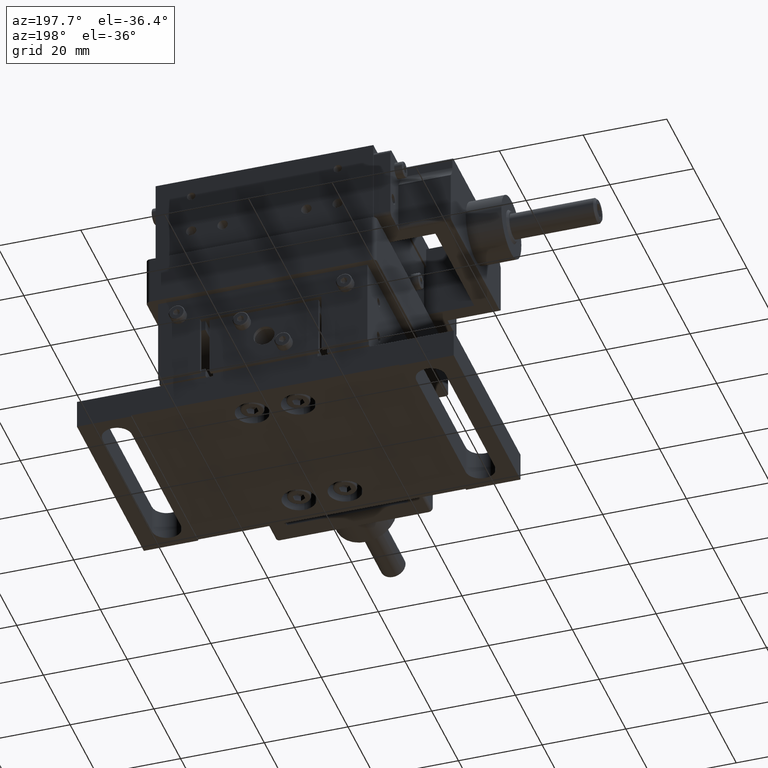
[diagram: clean part render]
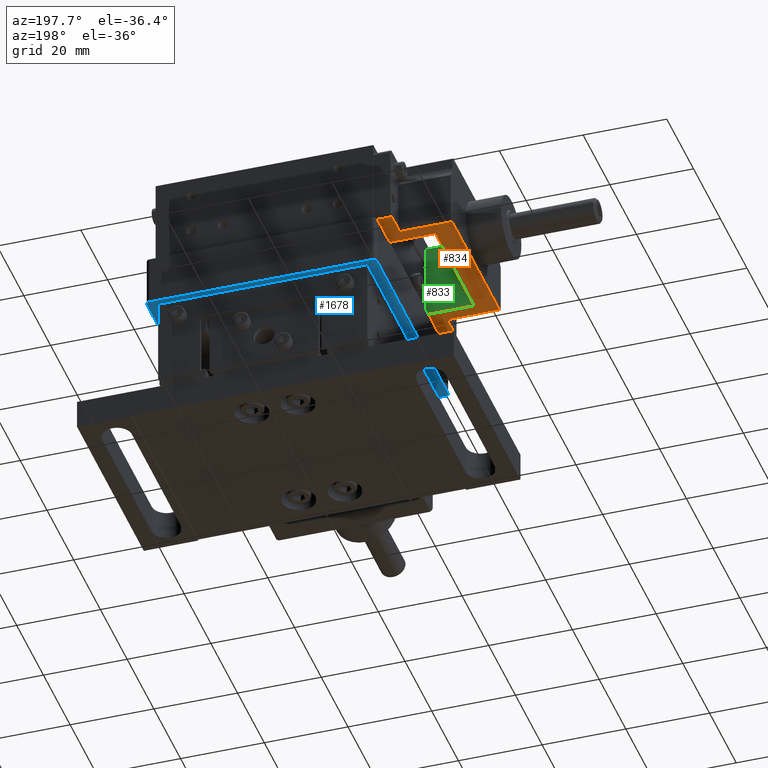
[diagram: same view with three faces highlighted in distinct colors, each labeled with its STEP entity id]
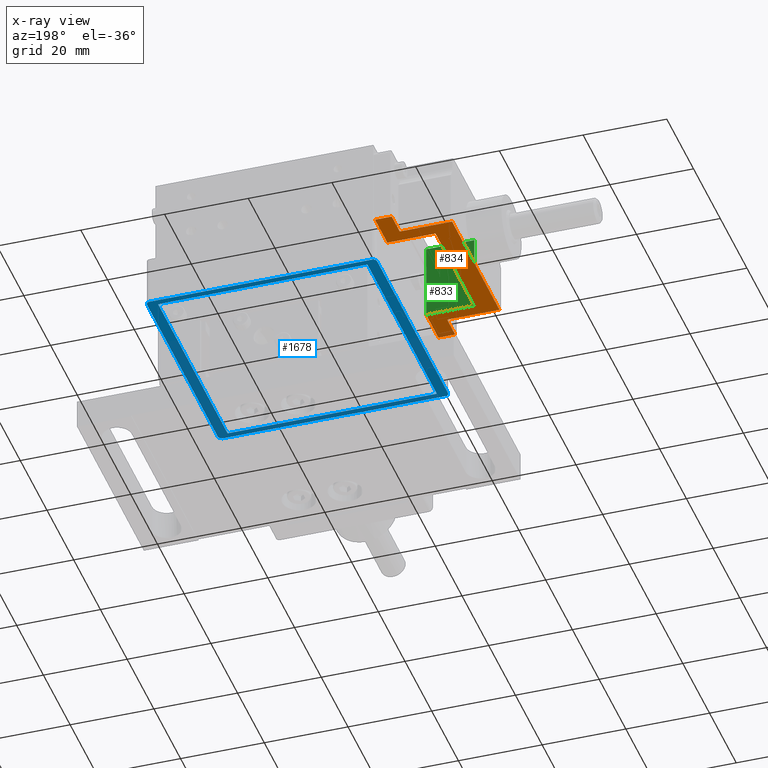
[diagram: x-ray of the same camera — body ghosted, the three highlighted faces saturated]
A machine part, auxiliary view with three faces highlighted in distinct colors.
The next image is the same camera in x-ray (body ghosted, the three faces saturated) — at least one of them is partly hidden behind the body in this view.
Their STEP definitions:

[orange] entity #834 — the highlighted face is a freeform B-spline surface patch.
#834=ADVANCED_FACE('',(#2018),#38443,.T.);
#2018=FACE_OUTER_BOUND('',#3204,.T.);
#3204=EDGE_LOOP('',(#4634,#4635,#4636,#4637,#4638,#4639,#4640,#4641,#4642,
#4643,#4644,#4645,#4646));
#4634=ORIENTED_EDGE('',*,*,#31514,.T.);
#4635=ORIENTED_EDGE('',*,*,#31515,.T.);
#4636=ORIENTED_EDGE('',*,*,#31506,.F.);
#4637=ORIENTED_EDGE('',*,*,#31510,.F.);
#4638=ORIENTED_EDGE('',*,*,#31513,.F.);
#4639=ORIENTED_EDGE('',*,*,#31481,.F.);
#4640=ORIENTED_EDGE('',*,*,#31516,.T.);
#4641=ORIENTED_EDGE('',*,*,#31517,.T.);
#4642=ORIENTED_EDGE('',*,*,#31518,.T.);
#4643=ORIENTED_EDGE('',*,*,#31519,.T.);
#4644=ORIENTED_EDGE('',*,*,#31520,.T.);
#4645=ORIENTED_EDGE('',*,*,#31521,.T.);
#4646=ORIENTED_EDGE('',*,*,#31522,.T.);
#10367=PCURVE('',#38438,#16146);
#10400=PCURVE('',#38440,#16179);
#10404=PCURVE('',#38441,#16183);
#10411=PCURVE('',#38442,#16190);
#10413=PCURVE('',#38443,#16192);
#10414=PCURVE('',#38443,#16193);
#10415=PCURVE('',#38443,#16194);
#10416=PCURVE('',#38443,#16195);
#10417=PCURVE('',#38443,#16196);
#10418=PCURVE('',#38443,#16197);
#10419=PCURVE('',#38443,#16198);
#10420=PCURVE('',#38443,#16199);
#10421=PCURVE('',#38443,#16200);
#10422=PCURVE('',#38443,#16201);
#10423=PCURVE('',#38443,#16202);
#10424=PCURVE('',#38443,#16203);
#10425=PCURVE('',#38443,#16204);
#10453=PCURVE('',#38935,#16232);
#10457=PCURVE('',#38936,#16236);
#10463=PCURVE('',#38937,#16242);
#10473=PCURVE('',#38938,#16252);
#10481=PCURVE('',#38449,#16260);
#10503=PCURVE('',#38450,#16282);
#10530=PCURVE('',#38453,#16309);
#11396=PCURVE('',#38506,#17175);
#11399=PCURVE('',#38506,#17178);
#16146=DEFINITIONAL_REPRESENTATION('',(#21929),#87459);
#16179=DEFINITIONAL_REPRESENTATION('',(#21969),#87459);
#16183=DEFINITIONAL_REPRESENTATION('',(#21977),#87459);
#16190=DEFINITIONAL_REPRESENTATION('',(#21985),#87459);
#16192=DEFINITIONAL_REPRESENTATION('',(#21988),#87459);
#16193=DEFINITIONAL_REPRESENTATION('',(#21990),#87459);
#16194=DEFINITIONAL_REPRESENTATION('',(#21991),#87459);
#16195=DEFINITIONAL_REPRESENTATION('',(#21992),#87459);
#16196=DEFINITIONAL_REPRESENTATION('',(#21993),#87459);
#16197=DEFINITIONAL_REPRESENTATION('',(#21994),#87459);
#16198=DEFINITIONAL_REPRESENTATION('',(#21996),#87459);
#16199=DEFINITIONAL_REPRESENTATION('',(#21998),#87459);
#16200=DEFINITIONAL_REPRESENTATION('',(#22000),#87459);
#16201=DEFINITIONAL_REPRESENTATION('',(#22002),#87459);
#16202=DEFINITIONAL_REPRESENTATION('',(#22004),#87459);
#16203=DEFINITIONAL_REPRESENTATION('',(#22006),#87459);
#16204=DEFINITIONAL_REPRESENTATION('',(#22008),#87459);
#16232=DEFINITIONAL_REPRESENTATION('',(#22042),#87459);
#16236=DEFINITIONAL_REPRESENTATION('',(#22047),#87459);
#16242=DEFINITIONAL_REPRESENTATION('',(#22056),#87459);
#16252=DEFINITIONAL_REPRESENTATION('',(#22069),#87459);
#16260=DEFINITIONAL_REPRESENTATION('',(#22078),#87459);
#16282=DEFINITIONAL_REPRESENTATION('',(#22093),#87459);
#16309=DEFINITIONAL_REPRESENTATION('',(#22120),#87459);
#17175=DEFINITIONAL_REPRESENTATION('',(#23135),#87459);
#17178=DEFINITIONAL_REPRESENTATION('',(#23138),#87459);
#21928=B_SPLINE_CURVE_WITH_KNOTS('',1,(#43057,#43058),.UNSPECIFIED.,.F.,
 .F.,(2,2),(0.,0.500000000000099),.UNSPECIFIED.);
#21929=B_SPLINE_CURVE_WITH_KNOTS('',1,(#43059,#43060),.UNSPECIFIED.,.F.,
 .F.,(2,2),(0.,0.500000000000099),.UNSPECIFIED.);
#21968=B_SPLINE_CURVE_WITH_KNOTS('',1,(#43227,#43228),.UNSPECIFIED.,.F.,
 .F.,(2,2),(0.,11.5),.UNSPECIFIED.);
#21969=B_SPLINE_CURVE_WITH_KNOTS('',1,(#43229,#43230),.UNSPECIFIED.,.F.,
 .F.,(2,2),(0.,11.5),.UNSPECIFIED.);
#21976=B_SPLINE_CURVE_WITH_KNOTS('',1,(#43243,#43244),.UNSPECIFIED.,.F.,
 .F.,(2,2),(0.,29.),.UNSPECIFIED.);
#21977=B_SPLINE_CURVE_WITH_KNOTS('',1,(#43245,#43246),.UNSPECIFIED.,.F.,
 .F.,(2,2),(0.,29.),.UNSPECIFIED.);
#21984=B_SPLINE_CURVE_WITH_KNOTS('',1,(#43269,#43270),.UNSPECIFIED.,.F.,
 .F.,(2,2),(0.,11.5),.UNSPECIFIED.);
#21985=B_SPLINE_CURVE_WITH_KNOTS('',1,(#43271,#43272),.UNSPECIFIED.,.F.,
 .F.,(2,2),(0.,11.5),.UNSPECIFIED.);
#21987=B_SPLINE_CURVE_WITH_KNOTS('',1,(#43275,#43276),.UNSPECIFIED.,.F.,
 .F.,(2,2),(-4.,0.),.UNSPECIFIED.);
#21988=B_SPLINE_CURVE_WITH_KNOTS('',1,(#43277,#43278),.UNSPECIFIED.,.F.,
 .F.,(2,2),(-4.,0.),.UNSPECIFIED.);
#21989=B_SPLINE_CURVE_WITH_KNOTS('',1,(#43279,#43280),.UNSPECIFIED.,.F.,
 .F.,(2,2),(-9.25000000000007,0.),.UNSPECIFIED.);
#21990=B_SPLINE_CURVE_WITH_KNOTS('',1,(#43281,#43282),.UNSPECIFIED.,.F.,
 .F.,(2,2),(-9.25000000000007,0.),.UNSPECIFIED.);
#21991=B_SPLINE_CURVE_WITH_KNOTS('',1,(#43283,#43284),.UNSPECIFIED.,.F.,
 .F.,(2,2),(0.,11.5),.UNSPECIFIED.);
#21992=B_SPLINE_CURVE_WITH_KNOTS('',1,(#43285,#43286),.UNSPECIFIED.,.F.,
 .F.,(2,2),(0.,29.),.UNSPECIFIED.);
#21993=B_SPLINE_CURVE_WITH_KNOTS('',1,(#43287,#43288),.UNSPECIFIED.,.F.,
 .F.,(2,2),(0.,11.5),.UNSPECIFIED.);
#21994=B_SPLINE_CURVE_WITH_KNOTS('',1,(#43289,#43290),.UNSPECIFIED.,.F.,
 .F.,(2,2),(0.,0.500000000000099),.UNSPECIFIED.);
#21995=B_SPLINE_CURVE_WITH_KNOTS('',1,(#43291,#43292),.UNSPECIFIED.,.F.,
 .F.,(2,2),(-8.7499999999999,0.),.UNSPECIFIED.);
#21996=B_SPLINE_CURVE_WITH_KNOTS('',1,(#43293,#43294),.UNSPECIFIED.,.F.,
 .F.,(2,2),(-8.7499999999999,0.),.UNSPECIFIED.);
#21997=B_SPLINE_CURVE_WITH_KNOTS('',1,(#43295,#43296),.UNSPECIFIED.,.F.,
 .F.,(2,2),(-4.,0.),.UNSPECIFIED.);
#21998=B_SPLINE_CURVE_WITH_KNOTS('',1,(#43297,#43298),.UNSPECIFIED.,.F.,
 .F.,(2,2),(-4.,0.),.UNSPECIFIED.);
#21999=B_SPLINE_CURVE_WITH_KNOTS('',1,(#43299,#43300),.UNSPECIFIED.,.F.,
 .F.,(2,2),(-6.,0.),.UNSPECIFIED.);
#22000=B_SPLINE_CURVE_WITH_KNOTS('',1,(#43301,#43302),.UNSPECIFIED.,.F.,
 .F.,(2,2),(-6.,0.),.UNSPECIFIED.);
#22001=B_SPLINE_CURVE_WITH_KNOTS('',1,(#43303,#43304),.UNSPECIFIED.,.F.,
 .F.,(2,2),(-12.5,0.),.UNSPECIFIED.);
#22002=B_SPLINE_CURVE_WITH_KNOTS('',1,(#43305,#43306),.UNSPECIFIED.,.F.,
 .F.,(2,2),(-12.5,0.),.UNSPECIFIED.);
#22003=B_SPLINE_CURVE_WITH_KNOTS('',1,(#43307,#43308),.UNSPECIFIED.,.F.,
 .F.,(2,2),(-35.5000000000001,0.),.UNSPECIFIED.);
#22004=B_SPLINE_CURVE_WITH_KNOTS('',1,(#43309,#43310),.UNSPECIFIED.,.F.,
 .F.,(2,2),(-35.5000000000001,0.),.UNSPECIFIED.);
#22005=B_SPLINE_CURVE_WITH_KNOTS('',1,(#43311,#43312),.UNSPECIFIED.,.F.,
 .F.,(2,2),(-12.5,0.),.UNSPECIFIED.);
#22006=B_SPLINE_CURVE_WITH_KNOTS('',1,(#43313,#43314),.UNSPECIFIED.,.F.,
 .F.,(2,2),(-12.5,0.),.UNSPECIFIED.);
#22007=B_SPLINE_CURVE_WITH_KNOTS('',1,(#43315,#43316),.UNSPECIFIED.,.F.,
 .F.,(2,2),(-6.,0.),.UNSPECIFIED.);
#22008=B_SPLINE_CURVE_WITH_KNOTS('',1,(#43317,#43318),.UNSPECIFIED.,.F.,
 .F.,(2,2),(-6.,0.),.UNSPECIFIED.);
#22042=B_SPLINE_CURVE_WITH_KNOTS('',1,(#43463,#43464),.UNSPECIFIED.,.F.,
 .F.,(2,2),(-4.,0.),.UNSPECIFIED.);
#22047=B_SPLINE_CURVE_WITH_KNOTS('',1,(#43479,#43480),.UNSPECIFIED.,.F.,
 .F.,(2,2),(-4.,0.),.UNSPECIFIED.);
#22056=B_SPLINE_CURVE_WITH_KNOTS('',1,(#43500,#43501),.UNSPECIFIED.,.F.,
 .F.,(2,2),(-12.5,0.),.UNSPECIFIED.);
#22069=B_SPLINE_CURVE_WITH_KNOTS('',1,(#43535,#43536),.UNSPECIFIED.,.F.,
 .F.,(2,2),(-12.5,0.),.UNSPECIFIED.);
#22078=B_SPLINE_CURVE_WITH_KNOTS('',1,(#43562,#43563),.UNSPECIFIED.,.F.,
 .F.,(2,2),(-6.,0.),.UNSPECIFIED.);
#22093=B_SPLINE_CURVE_WITH_KNOTS('',1,(#43645,#43646),.UNSPECIFIED.,.F.,
 .F.,(2,2),(-6.,0.),.UNSPECIFIED.);
#22120=B_SPLINE_CURVE_WITH_KNOTS('',1,(#43744,#43745),.UNSPECIFIED.,.F.,
 .F.,(2,2),(-35.5000000000001,0.),.UNSPECIFIED.);
#23135=B_SPLINE_CURVE_WITH_KNOTS('',1,(#47774,#47775),.UNSPECIFIED.,.F.,
 .F.,(2,2),(-8.7499999999999,0.),.UNSPECIFIED.);
#23138=B_SPLINE_CURVE_WITH_KNOTS('',1,(#47780,#47781),.UNSPECIFIED.,.F.,
 .F.,(2,2),(-9.25000000000007,0.),.UNSPECIFIED.);
#28532=SURFACE_CURVE('',#21928,(#10367,#10418),.PCURVE_S1.);
#28557=SURFACE_CURVE('',#21968,(#10400,#10415),.PCURVE_S1.);
#28561=SURFACE_CURVE('',#21976,(#10404,#10416),.PCURVE_S1.);
#28564=SURFACE_CURVE('',#21984,(#10411,#10417),.PCURVE_S1.);
#28565=SURFACE_CURVE('',#21987,(#10413,#10453),.PCURVE_S1.);
#28566=SURFACE_CURVE('',#21989,(#10414,#11399),.PCURVE_S1.);
#28567=SURFACE_CURVE('',#21995,(#10419,#11396),.PCURVE_S1.);
#28568=SURFACE_CURVE('',#21997,(#10420,#10457),.PCURVE_S1.);
#28569=SURFACE_CURVE('',#21999,(#10421,#10503),.PCURVE_S1.);
#28570=SURFACE_CURVE('',#22001,(#10422,#10463),.PCURVE_S1.);
#28571=SURFACE_CURVE('',#22003,(#10423,#10530),.PCURVE_S1.);
#28572=SURFACE_CURVE('',#22005,(#10424,#10473),.PCURVE_S1.);
#28573=SURFACE_CURVE('',#22007,(#10425,#10481),.PCURVE_S1.);
#31481=EDGE_CURVE('',#36541,#36544,#28532,.T.);
#31506=EDGE_CURVE('',#36562,#36560,#28557,.T.);
#31510=EDGE_CURVE('',#36564,#36562,#28561,.T.);
#31513=EDGE_CURVE('',#36544,#36564,#28564,.T.);
#31514=EDGE_CURVE('',#36572,#36567,#28565,.T.);
#31515=EDGE_CURVE('',#36567,#36560,#28566,.T.);
#31516=EDGE_CURVE('',#36541,#36566,#28567,.T.);
#31517=EDGE_CURVE('',#36566,#36571,#28568,.T.);
#31518=EDGE_CURVE('',#36571,#36570,#28569,.T.);
#31519=EDGE_CURVE('',#36570,#36569,#28570,.T.);
#31520=EDGE_CURVE('',#36569,#36568,#28571,.T.);
#31521=EDGE_CURVE('',#36568,#36573,#28572,.T.);
#31522=EDGE_CURVE('',#36573,#36572,#28573,.T.);
#36541=VERTEX_POINT('',#42577);
#36544=VERTEX_POINT('',#42580);
#36560=VERTEX_POINT('',#42596);
#36562=VERTEX_POINT('',#42598);
#36564=VERTEX_POINT('',#42600);
#36566=VERTEX_POINT('',#42602);
#36567=VERTEX_POINT('',#42603);
#36568=VERTEX_POINT('',#42604);
#36569=VERTEX_POINT('',#42605);
#36570=VERTEX_POINT('',#42606);
#36571=VERTEX_POINT('',#42607);
#36572=VERTEX_POINT('',#42608);
#36573=VERTEX_POINT('',#42609);
#38438=B_SPLINE_SURFACE_WITH_KNOTS('',1,1,((#39726,#39727),(#39728,#39729)),
 .UNSPECIFIED.,.F.,.F.,.F.,(2,2),(2,2),(-16.2449999999999,0.494999999999992),
(-1.27000000000011,0.770000000000039),.UNSPECIFIED.);
#38440=B_SPLINE_SURFACE_WITH_KNOTS('',1,1,((#39842,#39843),(#39844,#39845)),
 .UNSPECIFIED.,.F.,.F.,.F.,(2,2),(2,2),(-0.97000000000002,21.47),(-1.27,
12.77),.UNSPECIFIED.);
#38441=B_SPLINE_SURFACE_WITH_KNOTS('',1,1,((#39846,#39847),(#39848,#39849)),
 .UNSPECIFIED.,.F.,.F.,.F.,(2,2),(2,2),(-21.4700000000001,0.970000000000007),
(-32.0200000000001,3.02000000000004),.UNSPECIFIED.);
#38442=B_SPLINE_SURFACE_WITH_KNOTS('',1,1,((#39850,#39851),(#39852,#39853)),
 .UNSPECIFIED.,.F.,.F.,.F.,(2,2),(2,2),(-21.47,0.970000000000014),(-5.27,
8.77000000000003),.UNSPECIFIED.);
#38443=B_SPLINE_SURFACE_WITH_KNOTS('',1,1,((#39854,#39855),(#39856,#39857)),
 .UNSPECIFIED.,.F.,.F.,.F.,(2,2),(2,2),(-12.0510650887574,7.98893491124263),
(-28.6200000000001,28.6200000000001),.UNSPECIFIED.);
#38449=B_SPLINE_SURFACE_WITH_KNOTS('',1,1,((#40022,#40023),(#40024,#40025)),
 .UNSPECIFIED.,.F.,.F.,.F.,(2,2),(2,2),(-0.970000000000016,21.47),(-1.945,
8.19500000000004),.UNSPECIFIED.);
#38450=B_SPLINE_SURFACE_WITH_KNOTS('',1,1,((#40044,#40045),(#40046,#40047)),
 .UNSPECIFIED.,.F.,.F.,.F.,(2,2),(2,2),(-0.970000000000005,21.47),(-8.195,
1.94500000000004),.UNSPECIFIED.);
#38453=B_SPLINE_SURFACE_WITH_KNOTS('',1,1,((#40092,#40093),(#40094,#40095)),
 .UNSPECIFIED.,.F.,.F.,.F.,(2,2),(2,2),(-40.1200000000001,5.12000000000005),
(-22.7200000000001,2.72),.UNSPECIFIED.);
#38506=B_SPLINE_SURFACE_WITH_KNOTS('',1,1,((#42305,#42306),(#42307,#42308)),
 .UNSPECIFIED.,.F.,.F.,.F.,(2,2),(2,2),(-14.6278947368423,10.8121052631581),
(-30.0352046783626,30.2047953216375),.UNSPECIFIED.);
#38935=(
BOUNDED_SURFACE()
B_SPLINE_SURFACE(2,1,((#39938,#39939),(#39940,#39941),(#39942,#39943),(#39944,
#39945),(#39946,#39947),(#39948,#39949),(#39950,#39951),(#39952,#39953),
(#39954,#39955)),.UNSPECIFIED.,.T.,.F.,.F.)
B_SPLINE_SURFACE_WITH_KNOTS((3,2,2,2,3),(2,2),(0.,1.5707963267949,3.14159265358979,
4.71238898038469,6.28318530717959),(0.,5.04000000000001),.UNSPECIFIED.)
GEOMETRIC_REPRESENTATION_ITEM()
RATIONAL_B_SPLINE_SURFACE(((1.,1.),(0.707106781186548,0.707106781186548),
(1.,1.),(0.707106781186548,0.707106781186548),(1.,1.),(0.707106781186548,
0.707106781186548),(1.,1.),(0.707106781186548,0.707106781186548),(1.,1.)))
REPRESENTATION_ITEM('')
SURFACE()
);
#38936=(
BOUNDED_SURFACE()
B_SPLINE_SURFACE(2,1,((#39956,#39957),(#39958,#39959),(#39960,#39961),(#39962,
#39963),(#39964,#39965),(#39966,#39967),(#39968,#39969),(#39970,#39971),
(#39972,#39973)),.UNSPECIFIED.,.T.,.F.,.F.)
B_SPLINE_SURFACE_WITH_KNOTS((3,2,2,2,3),(2,2),(0.,1.5707963267949,3.14159265358979,
4.71238898038469,6.28318530717959),(0.,5.04000000000001),.UNSPECIFIED.)
GEOMETRIC_REPRESENTATION_ITEM()
RATIONAL_B_SPLINE_SURFACE(((1.,1.),(0.707106781186548,0.707106781186548),
(1.,1.),(0.707106781186548,0.707106781186548),(1.,1.),(0.707106781186548,
0.707106781186548),(1.,1.),(0.707106781186548,0.707106781186548),(1.,1.)))
REPRESENTATION_ITEM('')
SURFACE()
);
#38937=(
BOUNDED_SURFACE()
B_SPLINE_SURFACE(2,1,((#39978,#39979),(#39980,#39981),(#39982,#39983),(#39984,
#39985),(#39986,#39987),(#39988,#39989),(#39990,#39991),(#39992,#39993),
(#39994,#39995)),.UNSPECIFIED.,.T.,.F.,.F.)
B_SPLINE_SURFACE_WITH_KNOTS((3,2,2,2,3),(2,2),(0.,1.5707963267949,3.14159265358979,
4.71238898038469,6.28318530717959),(0.,15.24),.UNSPECIFIED.)
GEOMETRIC_REPRESENTATION_ITEM()
RATIONAL_B_SPLINE_SURFACE(((1.,1.),(0.707106781186548,0.707106781186548),
(1.,1.),(0.707106781186548,0.707106781186548),(1.,1.),(0.707106781186548,
0.707106781186548),(1.,1.),(0.707106781186548,0.707106781186548),(1.,1.)))
REPRESENTATION_ITEM('')
SURFACE()
);
#38938=(
BOUNDED_SURFACE()
B_SPLINE_SURFACE(2,1,((#40000,#40001),(#40002,#40003),(#40004,#40005),(#40006,
#40007),(#40008,#40009),(#40010,#40011),(#40012,#40013),(#40014,#40015),
(#40016,#40017)),.UNSPECIFIED.,.T.,.F.,.F.)
B_SPLINE_SURFACE_WITH_KNOTS((3,2,2,2,3),(2,2),(0.,1.5707963267949,3.14159265358979,
4.71238898038469,6.28318530717959),(0.,15.24),.UNSPECIFIED.)
GEOMETRIC_REPRESENTATION_ITEM()
RATIONAL_B_SPLINE_SURFACE(((1.,1.),(0.707106781186548,0.707106781186548),
(1.,1.),(0.707106781186548,0.707106781186548),(1.,1.),(0.707106781186548,
0.707106781186548),(1.,1.),(0.707106781186548,0.707106781186548),(1.,1.)))
REPRESENTATION_ITEM('')
SURFACE()
);
#39726=CARTESIAN_POINT('',(-25.9164528104948,-15.8439224317623,59.5140559995546));
#39727=CARTESIAN_POINT('',(-25.9164528104948,-13.8039224317621,59.5140559995546));
#39728=CARTESIAN_POINT('',(-25.9164528104948,-15.8439224317623,42.7740559995547));
#39729=CARTESIAN_POINT('',(-25.9164528104948,-13.8039224317621,42.7740559995547));
#39842=CARTESIAN_POINT('',(-24.6464528104948,14.4260775682379,42.2990559995547));
#39843=CARTESIAN_POINT('',(-38.6864528104948,14.4260775682379,42.2990559995547));
#39844=CARTESIAN_POINT('',(-24.6464528104948,14.4260775682378,64.7390559995547));
#39845=CARTESIAN_POINT('',(-38.6864528104948,14.4260775682379,64.7390559995547));
#39846=CARTESIAN_POINT('',(-37.4164528104948,-17.5939224317622,64.7390559995547));
#39847=CARTESIAN_POINT('',(-37.4164528104948,17.4460775682379,64.7390559995547));
#39848=CARTESIAN_POINT('',(-37.4164528104948,-17.5939224317622,42.2990559995546));
#39849=CARTESIAN_POINT('',(-37.4164528104948,17.4460775682379,42.2990559995547));
#39850=CARTESIAN_POINT('',(-24.6464528104948,-14.5739224317622,64.7390559995547));
#39851=CARTESIAN_POINT('',(-38.6864528104948,-14.5739224317622,64.7390559995547));
#39852=CARTESIAN_POINT('',(-24.6464528104948,-14.5739224317621,42.2990559995547));
#39853=CARTESIAN_POINT('',(-38.6864528104948,-14.5739224317621,42.2990559995547));
#39854=CARTESIAN_POINT('',(-24.1464528104948,-28.6939224317622,44.2690559995546));
#39855=CARTESIAN_POINT('',(-24.1464528104947,28.546077568238,44.2690559995547));
#39856=CARTESIAN_POINT('',(-44.1864528104949,-28.6939224317622,44.2690559995546));
#39857=CARTESIAN_POINT('',(-44.1864528104948,28.546077568238,44.2690559995547));
#39938=CARTESIAN_POINT('',(-25.3964528104948,23.6760775682379,46.2690559995547));
#39939=CARTESIAN_POINT('',(-30.4364528104948,23.6760775682379,46.2690559995547));
#39940=CARTESIAN_POINT('',(-25.3964528104948,24.6760775682379,46.2690559995547));
#39941=CARTESIAN_POINT('',(-30.4364528104948,24.6760775682379,46.2690559995547));
#39942=CARTESIAN_POINT('',(-25.3964528104948,24.6760775682379,45.2690559995547));
#39943=CARTESIAN_POINT('',(-30.4364528104948,24.6760775682379,45.2690559995547));
#39944=CARTESIAN_POINT('',(-25.3964528104948,24.6760775682379,44.2690559995547));
#39945=CARTESIAN_POINT('',(-30.4364528104948,24.6760775682379,44.2690559995547));
#39946=CARTESIAN_POINT('',(-25.3964528104948,23.6760775682379,44.2690559995547));
#39947=CARTESIAN_POINT('',(-30.4364528104948,23.6760775682379,44.2690559995547));
#39948=CARTESIAN_POINT('',(-25.3964528104948,22.6760775682379,44.2690559995547));
#39949=CARTESIAN_POINT('',(-30.4364528104948,22.6760775682379,44.2690559995546));
#39950=CARTESIAN_POINT('',(-25.3964528104948,22.6760775682379,45.2690559995547));
#39951=CARTESIAN_POINT('',(-30.4364528104948,22.6760775682379,45.2690559995547));
#39952=CARTESIAN_POINT('',(-25.3964528104948,22.6760775682379,46.2690559995547));
#39953=CARTESIAN_POINT('',(-30.4364528104948,22.6760775682379,46.2690559995547));
#39954=CARTESIAN_POINT('',(-25.3964528104948,23.6760775682379,46.2690559995547));
#39955=CARTESIAN_POINT('',(-30.4364528104948,23.6760775682379,46.2690559995547));
#39956=CARTESIAN_POINT('',(-30.4364528104948,-23.8239224317621,46.2690559995547));
#39957=CARTESIAN_POINT('',(-25.3964528104948,-23.8239224317621,46.2690559995547));
#39958=CARTESIAN_POINT('',(-30.4364528104948,-24.8239224317621,46.2690559995547));
#39959=CARTESIAN_POINT('',(-25.3964528104948,-24.8239224317621,46.2690559995547));
#39960=CARTESIAN_POINT('',(-30.4364528104948,-24.8239224317621,45.2690559995547));
#39961=CARTESIAN_POINT('',(-25.3964528104948,-24.8239224317622,45.2690559995547));
#39962=CARTESIAN_POINT('',(-30.4364528104948,-24.8239224317621,44.2690559995547));
#39963=CARTESIAN_POINT('',(-25.3964528104948,-24.8239224317622,44.2690559995547));
#39964=CARTESIAN_POINT('',(-30.4364528104948,-23.8239224317621,44.2690559995547));
#39965=CARTESIAN_POINT('',(-25.3964528104948,-23.8239224317621,44.2690559995547));
#39966=CARTESIAN_POINT('',(-30.4364528104948,-22.8239224317621,44.2690559995547));
#39967=CARTESIAN_POINT('',(-25.3964528104948,-22.8239224317621,44.2690559995547));
#39968=CARTESIAN_POINT('',(-30.4364528104948,-22.8239224317621,45.2690559995547));
#39969=CARTESIAN_POINT('',(-25.3964528104948,-22.8239224317621,45.2690559995547));
#39970=CARTESIAN_POINT('',(-30.4364528104948,-22.8239224317621,46.2690559995547));
#39971=CARTESIAN_POINT('',(-25.3964528104948,-22.8239224317621,46.2690559995547));
#39972=CARTESIAN_POINT('',(-30.4364528104948,-23.8239224317621,46.2690559995547));
#39973=CARTESIAN_POINT('',(-25.3964528104948,-23.8239224317621,46.2690559995547));
#39978=CARTESIAN_POINT('',(-28.5464528104948,-17.8239224317621,46.2690559995547));
#39979=CARTESIAN_POINT('',(-43.7864528104948,-17.8239224317621,46.2690559995547));
#39980=CARTESIAN_POINT('',(-28.5464528104948,-16.8239224317621,46.2690559995547));
#39981=CARTESIAN_POINT('',(-43.7864528104948,-16.8239224317621,46.2690559995547));
#39982=CARTESIAN_POINT('',(-28.5464528104948,-16.8239224317621,45.2690559995547));
#39983=CARTESIAN_POINT('',(-43.7864528104948,-16.8239224317621,45.2690559995547));
#39984=CARTESIAN_POINT('',(-28.5464528104948,-16.8239224317621,44.2690559995547));
#39985=CARTESIAN_POINT('',(-43.7864528104948,-16.8239224317621,44.2690559995546));
#39986=CARTESIAN_POINT('',(-28.5464528104948,-17.8239224317621,44.2690559995547));
#39987=CARTESIAN_POINT('',(-43.7864528104948,-17.8239224317622,44.2690559995546));
#39988=CARTESIAN_POINT('',(-28.5464528104948,-18.8239224317621,44.2690559995547));
#39989=CARTESIAN_POINT('',(-43.7864528104948,-18.8239224317622,44.2690559995547));
#39990=CARTESIAN_POINT('',(-28.5464528104948,-18.8239224317621,45.2690559995547));
#39991=CARTESIAN_POINT('',(-43.7864528104948,-18.8239224317622,45.2690559995547));
#39992=CARTESIAN_POINT('',(-28.5464528104948,-18.8239224317621,46.2690559995547));
#39993=CARTESIAN_POINT('',(-43.7864528104948,-18.8239224317622,46.2690559995547));
#39994=CARTESIAN_POINT('',(-28.5464528104948,-17.8239224317621,46.2690559995547));
#39995=CARTESIAN_POINT('',(-43.7864528104948,-17.8239224317621,46.2690559995547));
#40000=CARTESIAN_POINT('',(-28.5464528104948,17.676077568238,46.2690559995547));
#40001=CARTESIAN_POINT('',(-43.7864528104948,17.676077568238,46.2690559995547));
#40002=CARTESIAN_POINT('',(-28.5464528104948,18.676077568238,46.2690559995547));
#40003=CARTESIAN_POINT('',(-43.7864528104948,18.676077568238,46.2690559995547));
#40004=CARTESIAN_POINT('',(-28.5464528104948,18.676077568238,45.2690559995547));
#40005=CARTESIAN_POINT('',(-43.7864528104948,18.676077568238,45.2690559995547));
#40006=CARTESIAN_POINT('',(-28.5464528104948,18.676077568238,44.2690559995547));
#40007=CARTESIAN_POINT('',(-43.7864528104948,18.676077568238,44.2690559995546));
#40008=CARTESIAN_POINT('',(-28.5464528104948,17.676077568238,44.2690559995547));
#40009=CARTESIAN_POINT('',(-43.7864528104948,17.6760775682379,44.2690559995546));
#40010=CARTESIAN_POINT('',(-28.5464528104948,16.676077568238,44.2690559995547));
#40011=CARTESIAN_POINT('',(-43.7864528104948,16.6760775682379,44.2690559995547));
#40012=CARTESIAN_POINT('',(-28.5464528104948,16.676077568238,45.2690559995547));
#40013=CARTESIAN_POINT('',(-43.7864528104948,16.6760775682379,45.2690559995547));
#40014=CARTESIAN_POINT('',(-28.5464528104948,16.676077568238,46.2690559995547));
#40015=CARTESIAN_POINT('',(-43.7864528104948,16.6760775682379,46.2690559995547));
#40016=CARTESIAN_POINT('',(-28.5464528104948,17.676077568238,46.2690559995547));
#40017=CARTESIAN_POINT('',(-43.7864528104948,17.676077568238,46.2690559995547));
#40022=CARTESIAN_POINT('',(-29.9164528104948,15.4810775682379,42.2990559995547));
#40023=CARTESIAN_POINT('',(-29.9164528104948,25.6210775682379,42.2990559995547));
#40024=CARTESIAN_POINT('',(-29.9164528104948,15.4810775682378,64.7390559995547));
#40025=CARTESIAN_POINT('',(-29.9164528104948,25.6210775682379,64.7390559995547));
#40044=CARTESIAN_POINT('',(-29.9164528104948,-25.7689224317621,42.2990559995547));
#40045=CARTESIAN_POINT('',(-29.9164528104948,-15.6289224317621,42.2990559995547));
#40046=CARTESIAN_POINT('',(-29.9164528104948,-25.7689224317622,64.7390559995547));
#40047=CARTESIAN_POINT('',(-29.9164528104948,-15.6289224317621,64.7390559995547));
#40092=CARTESIAN_POINT('',(-42.4164528104948,-22.6939224317622,65.9890559995547));
#40093=CARTESIAN_POINT('',(-42.4164528104948,-22.6939224317622,40.5490559995546));
#40094=CARTESIAN_POINT('',(-42.4164528104948,22.546077568238,65.9890559995548));
#40095=CARTESIAN_POINT('',(-42.4164528104948,22.546077568238,40.5490559995547));
#42305=CARTESIAN_POINT('',(-25.9164528104948,-30.1939224317623,41.2990559995543));
#42306=CARTESIAN_POINT('',(-25.9164528104948,30.0460775682379,41.2990559995545));
#42307=CARTESIAN_POINT('',(-25.9164528104948,-30.1939224317623,66.7390559995547));
#42308=CARTESIAN_POINT('',(-25.9164528104948,30.0460775682379,66.7390559995548));
#42577=CARTESIAN_POINT('',(-25.9164528104948,-15.0739224317622,44.2690559995547));
#42580=CARTESIAN_POINT('',(-25.9164528104948,-14.5739224317621,44.2690559995547));
#42596=CARTESIAN_POINT('',(-25.9164528104948,14.4260775682379,44.2690559995547));
#42598=CARTESIAN_POINT('',(-37.4164528104948,14.4260775682379,44.2690559995547));
#42600=CARTESIAN_POINT('',(-37.4164528104948,-14.5739224317621,44.2690559995547));
#42602=CARTESIAN_POINT('',(-25.9164528104948,-23.8239224317621,44.2690559995546));
#42603=CARTESIAN_POINT('',(-25.9164528104948,23.6760775682379,44.2690559995547));
#42604=CARTESIAN_POINT('',(-42.4164528104948,17.676077568238,44.2690559995547));
#42605=CARTESIAN_POINT('',(-42.4164528104948,-17.8239224317621,44.2690559995546));
#42606=CARTESIAN_POINT('',(-29.9164528104948,-17.8239224317621,44.2690559995547));
#42607=CARTESIAN_POINT('',(-29.9164528104948,-23.8239224317621,44.2690559995547));
#42608=CARTESIAN_POINT('',(-29.9164528104948,23.6760775682379,44.2690559995547));
#42609=CARTESIAN_POINT('',(-29.9164528104948,17.6760775682379,44.2690559995547));
#43057=CARTESIAN_POINT('',(-25.9164528104948,-15.0739224317622,44.2690559995547));
#43058=CARTESIAN_POINT('',(-25.9164528104948,-14.5739224317621,44.2690559995547));
#43059=CARTESIAN_POINT('',(-1.,-0.500000000000098));
#43060=CARTESIAN_POINT('',(-1.,1.66499677142236E-15));
#43227=CARTESIAN_POINT('',(-37.4164528104948,14.4260775682379,44.2690559995547));
#43228=CARTESIAN_POINT('',(-25.9164528104948,14.4260775682379,44.2690559995547));
#43229=CARTESIAN_POINT('',(0.999999999999984,11.5));
#43230=CARTESIAN_POINT('',(1.,1.41516140973529E-15));
#43243=CARTESIAN_POINT('',(-37.4164528104948,-14.5739224317621,44.2690559995547));
#43244=CARTESIAN_POINT('',(-37.4164528104948,14.4260775682379,44.2690559995547));
#43245=CARTESIAN_POINT('',(-1.00000000000005,-29.));
#43246=CARTESIAN_POINT('',(-1.,1.66499677142236E-15));
#43269=CARTESIAN_POINT('',(-25.9164528104948,-14.5739224317621,44.2690559995547));
#43270=CARTESIAN_POINT('',(-37.4164528104948,-14.5739224317621,44.2690559995547));
#43271=CARTESIAN_POINT('',(-1.00000000000001,-4.));
#43272=CARTESIAN_POINT('',(-0.999999999999989,7.5));
#43275=CARTESIAN_POINT('',(-29.9164528104948,23.6760775682379,44.2690559995547));
#43276=CARTESIAN_POINT('',(-25.9164528104948,23.6760775682379,44.2690559995547));
#43277=CARTESIAN_POINT('',(-6.28106508875738,23.75));
#43278=CARTESIAN_POINT('',(-10.2810650887574,23.7500000000001));
#43279=CARTESIAN_POINT('',(-25.9164528104948,23.6760775682379,44.2690559995547));
#43280=CARTESIAN_POINT('',(-25.9164528104948,14.4260775682379,44.2690559995547));
#43281=CARTESIAN_POINT('',(-10.2810650887574,23.7500000000001));
#43282=CARTESIAN_POINT('',(-10.2810650887574,14.5));
#43283=CARTESIAN_POINT('',(1.21893491124261,14.5));
#43284=CARTESIAN_POINT('',(-10.2810650887574,14.5));
#43285=CARTESIAN_POINT('',(1.21893491124258,-14.5000000000001));
#43286=CARTESIAN_POINT('',(1.21893491124261,14.5));
#43287=CARTESIAN_POINT('',(-10.2810650887574,-14.5));
#43288=CARTESIAN_POINT('',(1.21893491124258,-14.5000000000001));
#43289=CARTESIAN_POINT('',(-10.2810650887574,-15.0000000000001));
#43290=CARTESIAN_POINT('',(-10.2810650887574,-14.5));
#43291=CARTESIAN_POINT('',(-25.9164528104948,-15.0739224317622,44.2690559995547));
#43292=CARTESIAN_POINT('',(-25.9164528104948,-23.8239224317621,44.2690559995546));
#43293=CARTESIAN_POINT('',(-10.2810650887574,-15.0000000000001));
#43294=CARTESIAN_POINT('',(-10.2810650887574,-23.75));
#43295=CARTESIAN_POINT('',(-25.9164528104948,-23.8239224317621,44.2690559995546));
#43296=CARTESIAN_POINT('',(-29.9164528104948,-23.8239224317621,44.2690559995547));
#43297=CARTESIAN_POINT('',(-10.2810650887574,-23.75));
#43298=CARTESIAN_POINT('',(-6.28106508875742,-23.75));
#43299=CARTESIAN_POINT('',(-29.9164528104948,-23.8239224317621,44.2690559995547));
#43300=CARTESIAN_POINT('',(-29.9164528104948,-17.8239224317621,44.2690559995547));
#43301=CARTESIAN_POINT('',(-6.28106508875742,-23.75));
#43302=CARTESIAN_POINT('',(-6.28106508875742,-17.75));
#43303=CARTESIAN_POINT('',(-29.9164528104948,-17.8239224317621,44.2690559995547));
#43304=CARTESIAN_POINT('',(-42.4164528104948,-17.8239224317621,44.2690559995546));
#43305=CARTESIAN_POINT('',(-6.28106508875742,-17.75));
#43306=CARTESIAN_POINT('',(6.21893491124258,-17.7500000000001));
#43307=CARTESIAN_POINT('',(-42.4164528104948,-17.8239224317621,44.2690559995546));
#43308=CARTESIAN_POINT('',(-42.4164528104948,17.676077568238,44.2690559995547));
#43309=CARTESIAN_POINT('',(6.21893491124258,-17.7500000000001));
#43310=CARTESIAN_POINT('',(6.21893491124262,17.75));
#43311=CARTESIAN_POINT('',(-42.4164528104948,17.676077568238,44.2690559995547));
#43312=CARTESIAN_POINT('',(-29.9164528104948,17.6760775682379,44.2690559995547));
#43313=CARTESIAN_POINT('',(6.21893491124262,17.75));
#43314=CARTESIAN_POINT('',(-6.28106508875738,17.75));
#43315=CARTESIAN_POINT('',(-29.9164528104948,17.6760775682379,44.2690559995547));
#43316=CARTESIAN_POINT('',(-29.9164528104948,23.6760775682379,44.2690559995547));
#43317=CARTESIAN_POINT('',(-6.28106508875738,17.75));
#43318=CARTESIAN_POINT('',(-6.28106508875738,23.75));
#43463=CARTESIAN_POINT('',(3.14159265358979,4.52));
#43464=CARTESIAN_POINT('',(3.14159265358979,0.520000000000003));
#43479=CARTESIAN_POINT('',(3.14159265358979,4.52));
#43480=CARTESIAN_POINT('',(3.14159265358979,0.520000000000003));
#43500=CARTESIAN_POINT('',(3.14159265358979,1.37));
#43501=CARTESIAN_POINT('',(3.14159265358979,13.87));
#43535=CARTESIAN_POINT('',(3.14159265358979,13.87));
#43536=CARTESIAN_POINT('',(3.14159265358979,1.37));
#43562=CARTESIAN_POINT('',(1.,0.250000000000002));
#43563=CARTESIAN_POINT('',(0.99999999999999,6.25));
#43645=CARTESIAN_POINT('',(1.00000000000001,-6.25));
#43646=CARTESIAN_POINT('',(1.,-0.249999999999998));
#43744=CARTESIAN_POINT('',(-35.2500000000001,-1.00000000000006));
#43745=CARTESIAN_POINT('',(0.250000000000002,-1.));
#47774=CARTESIAN_POINT('',(-11.657894736842,-14.9152046783626));
#47775=CARTESIAN_POINT('',(-11.6578947368419,-23.6652046783625));
#47780=CARTESIAN_POINT('',(-11.657894736842,23.8347953216376));
#47781=CARTESIAN_POINT('',(-11.657894736842,14.5847953216375));
#87459=(
GEOMETRIC_REPRESENTATION_CONTEXT(2)
PARAMETRIC_REPRESENTATION_CONTEXT()
REPRESENTATION_CONTEXT('pspace','')
);

[blue] entity #1678 — the highlighted face is a freeform B-spline surface patch.
#776=FACE_BOUND('',#4203,.T.);
#1678=ADVANCED_FACE('',(#2862,#776),#38841,.T.);
#2862=FACE_OUTER_BOUND('',#4202,.T.);
#4202=EDGE_LOOP('',(#8827,#8828,#8829,#8830,#8831,#8832,#8833,#8834));
#4203=EDGE_LOOP('',(#8835,#8836,#8837,#8838));
#8827=ORIENTED_EDGE('',*,*,#33741,.F.);
#8828=ORIENTED_EDGE('',*,*,#33734,.F.);
#8829=ORIENTED_EDGE('',*,*,#33733,.F.);
#8830=ORIENTED_EDGE('',*,*,#33722,.F.);
#8831=ORIENTED_EDGE('',*,*,#33663,.F.);
#8832=ORIENTED_EDGE('',*,*,#33729,.F.);
#8833=ORIENTED_EDGE('',*,*,#33726,.F.);
#8834=ORIENTED_EDGE('',*,*,#33742,.F.);
#8835=ORIENTED_EDGE('',*,*,#33623,.F.);
#8836=ORIENTED_EDGE('',*,*,#33285,.F.);
#8837=ORIENTED_EDGE('',*,*,#33635,.F.);
#8838=ORIENTED_EDGE('',*,*,#33309,.F.);
#13846=PCURVE('',#38785,#19625);
#13870=PCURVE('',#38786,#19649);
#14370=PCURVE('',#38808,#20149);
#14415=PCURVE('',#38814,#20194);
#14493=PCURVE('',#38836,#20272);
#14577=PCURVE('',#39373,#20356);
#14581=PCURVE('',#38837,#20360);
#14585=PCURVE('',#39374,#20364);
#14591=PCURVE('',#38838,#20370);
#14593=PCURVE('',#39375,#20372);
#14601=PCURVE('',#38840,#20380);
#14603=PCURVE('',#39376,#20382);
#14606=PCURVE('',#38841,#20385);
#14607=PCURVE('',#38841,#20386);
#14608=PCURVE('',#38841,#20387);
#14609=PCURVE('',#38841,#20388);
#14610=PCURVE('',#38841,#20389);
#14611=PCURVE('',#38841,#20390);
#14612=PCURVE('',#38841,#20391);
#14613=PCURVE('',#38841,#20392);
#14614=PCURVE('',#38841,#20393);
#14615=PCURVE('',#38841,#20394);
#14616=PCURVE('',#38841,#20395);
#14617=PCURVE('',#38841,#20396);
#19625=DEFINITIONAL_REPRESENTATION('',(#25967),#87459);
#19649=DEFINITIONAL_REPRESENTATION('',(#25983),#87459);
#20149=DEFINITIONAL_REPRESENTATION('',(#26651),#87459);
#20194=DEFINITIONAL_REPRESENTATION('',(#26700),#87459);
#20272=DEFINITIONAL_REPRESENTATION('',(#26751),#87459);
#20356=DEFINITIONAL_REPRESENTATION('',(#26869),#87459);
#20360=DEFINITIONAL_REPRESENTATION('',(#26876),#87459);
#20364=DEFINITIONAL_REPRESENTATION('',(#26882),#87459);
#20370=DEFINITIONAL_REPRESENTATION('',(#26891),#87459);
#20372=DEFINITIONAL_REPRESENTATION('',(#26893),#87459);
#20380=DEFINITIONAL_REPRESENTATION('',(#26903),#87459);
#20382=DEFINITIONAL_REPRESENTATION('',(#26905),#87459);
#20385=DEFINITIONAL_REPRESENTATION('',(#26908),#87459);
#20386=DEFINITIONAL_REPRESENTATION('',(#35949),#87459);
#20387=DEFINITIONAL_REPRESENTATION('',(#26909),#87459);
#20388=DEFINITIONAL_REPRESENTATION('',(#35950),#87459);
#20389=DEFINITIONAL_REPRESENTATION('',(#26910),#87459);
#20390=DEFINITIONAL_REPRESENTATION('',(#35951),#87459);
#20391=DEFINITIONAL_REPRESENTATION('',(#26911),#87459);
#20392=DEFINITIONAL_REPRESENTATION('',(#35952),#87459);
#20393=DEFINITIONAL_REPRESENTATION('',(#26912),#87459);
#20394=DEFINITIONAL_REPRESENTATION('',(#26913),#87459);
#20395=DEFINITIONAL_REPRESENTATION('',(#26914),#87459);
#20396=DEFINITIONAL_REPRESENTATION('',(#26915),#87459);
#25966=B_SPLINE_CURVE_WITH_KNOTS('',1,(#69726,#69727),.UNSPECIFIED.,.F.,
 .F.,(2,2),(0.,51.9999999999998),.UNSPECIFIED.);
#25967=B_SPLINE_CURVE_WITH_KNOTS('',1,(#69728,#69729),.UNSPECIFIED.,.F.,
 .F.,(2,2),(0.,51.9999999999998),.UNSPECIFIED.);
#25982=B_SPLINE_CURVE_WITH_KNOTS('',1,(#69918,#69919),.UNSPECIFIED.,.F.,
 .F.,(2,2),(-51.9999999999998,0.),.UNSPECIFIED.);
#25983=B_SPLINE_CURVE_WITH_KNOTS('',1,(#69920,#69921),.UNSPECIFIED.,.F.,
 .F.,(2,2),(-51.9999999999998,0.),.UNSPECIFIED.);
#26650=B_SPLINE_CURVE_WITH_KNOTS('',1,(#72512,#72513),.UNSPECIFIED.,.F.,
 .F.,(2,2),(-50.,0.),.UNSPECIFIED.);
#26651=B_SPLINE_CURVE_WITH_KNOTS('',1,(#72514,#72515),.UNSPECIFIED.,.F.,
 .F.,(2,2),(-50.,0.),.UNSPECIFIED.);
#26699=B_SPLINE_CURVE_WITH_KNOTS('',1,(#72642,#72643),.UNSPECIFIED.,.F.,
 .F.,(2,2),(-50.,0.),.UNSPECIFIED.);
#26700=B_SPLINE_CURVE_WITH_KNOTS('',1,(#72644,#72645),.UNSPECIFIED.,.F.,
 .F.,(2,2),(-50.,0.),.UNSPECIFIED.);
#26750=B_SPLINE_CURVE_WITH_KNOTS('',1,(#73019,#73020),.UNSPECIFIED.,.F.,
 .F.,(2,2),(0.,53.),.UNSPECIFIED.);
#26751=B_SPLINE_CURVE_WITH_KNOTS('',1,(#73021,#73022),.UNSPECIFIED.,.F.,
 .F.,(2,2),(0.,53.),.UNSPECIFIED.);
#26869=B_SPLINE_CURVE_WITH_KNOTS('',1,(#73380,#73381),.UNSPECIFIED.,.F.,
 .F.,(2,2),(0.,1.5707963267949),.UNSPECIFIED.);
#26875=B_SPLINE_CURVE_WITH_KNOTS('',1,(#73395,#73396),.UNSPECIFIED.,.F.,
 .F.,(2,2),(0.,53.0000000000001),.UNSPECIFIED.);
#26876=B_SPLINE_CURVE_WITH_KNOTS('',1,(#73397,#73398),.UNSPECIFIED.,.F.,
 .F.,(2,2),(0.,53.0000000000001),.UNSPECIFIED.);
#26882=B_SPLINE_CURVE_WITH_KNOTS('',1,(#73412,#73413),.UNSPECIFIED.,.F.,
 .F.,(2,2),(0.,1.5707963267949),.UNSPECIFIED.);
#26890=B_SPLINE_CURVE_WITH_KNOTS('',1,(#73431,#73432),.UNSPECIFIED.,.F.,
 .F.,(2,2),(0.,53.),.UNSPECIFIED.);
#26891=B_SPLINE_CURVE_WITH_KNOTS('',1,(#73433,#73434),.UNSPECIFIED.,.F.,
 .F.,(2,2),(0.,53.),.UNSPECIFIED.);
#26893=B_SPLINE_CURVE_WITH_KNOTS('',1,(#73440,#73441),.UNSPECIFIED.,.F.,
 .F.,(2,2),(0.,1.5707963267949),.UNSPECIFIED.);
#26902=B_SPLINE_CURVE_WITH_KNOTS('',1,(#73481,#73482),.UNSPECIFIED.,.F.,
 .F.,(2,2),(0.,53.),.UNSPECIFIED.);
#26903=B_SPLINE_CURVE_WITH_KNOTS('',1,(#73483,#73484),.UNSPECIFIED.,.F.,
 .F.,(2,2),(0.,53.),.UNSPECIFIED.);
#26905=B_SPLINE_CURVE_WITH_KNOTS('',1,(#73490,#73491),.UNSPECIFIED.,.F.,
 .F.,(2,2),(0.,1.5707963267948),.UNSPECIFIED.);
#26908=B_SPLINE_CURVE_WITH_KNOTS('',1,(#73499,#73500),.UNSPECIFIED.,.F.,
 .F.,(2,2),(0.,53.),.UNSPECIFIED.);
#26909=B_SPLINE_CURVE_WITH_KNOTS('',1,(#73504,#73505),.UNSPECIFIED.,.F.,
 .F.,(2,2),(0.,53.),.UNSPECIFIED.);
#26910=B_SPLINE_CURVE_WITH_KNOTS('',1,(#73509,#73510),.UNSPECIFIED.,.F.,
 .F.,(2,2),(0.,53.),.UNSPECIFIED.);
#26911=B_SPLINE_CURVE_WITH_KNOTS('',1,(#73514,#73515),.UNSPECIFIED.,.F.,
 .F.,(2,2),(0.,53.0000000000001),.UNSPECIFIED.);
#26912=B_SPLINE_CURVE_WITH_KNOTS('',1,(#73519,#73520),.UNSPECIFIED.,.F.,
 .F.,(2,2),(-50.,0.),.UNSPECIFIED.);
#26913=B_SPLINE_CURVE_WITH_KNOTS('',1,(#73521,#73522),.UNSPECIFIED.,.F.,
 .F.,(2,2),(0.,51.9999999999998),.UNSPECIFIED.);
#26914=B_SPLINE_CURVE_WITH_KNOTS('',1,(#73523,#73524),.UNSPECIFIED.,.F.,
 .F.,(2,2),(-50.,0.),.UNSPECIFIED.);
#26915=B_SPLINE_CURVE_WITH_KNOTS('',1,(#73525,#73526),.UNSPECIFIED.,.F.,
 .F.,(2,2),(-51.9999999999998,0.),.UNSPECIFIED.);
#30336=SURFACE_CURVE('',#25966,(#13846,#14615),.PCURVE_S1.);
#30360=SURFACE_CURVE('',#25982,(#13870,#14617),.PCURVE_S1.);
#30674=SURFACE_CURVE('',#26650,(#14370,#14614),.PCURVE_S1.);
#30686=SURFACE_CURVE('',#26699,(#14415,#14616),.PCURVE_S1.);
#30714=SURFACE_CURVE('',#26750,(#14493,#14610),.PCURVE_S1.);
#30773=SURFACE_CURVE('',#35937,(#14577,#14609),.PCURVE_S1.);
#30777=SURFACE_CURVE('',#26875,(#14581,#14612),.PCURVE_S1.);
#30780=SURFACE_CURVE('',#35939,(#14585,#14611),.PCURVE_S1.);
#30784=SURFACE_CURVE('',#26890,(#14591,#14608),.PCURVE_S1.);
#30785=SURFACE_CURVE('',#35941,(#14593,#14607),.PCURVE_S1.);
#30792=SURFACE_CURVE('',#26902,(#14601,#14606),.PCURVE_S1.);
#30793=SURFACE_CURVE('',#35947,(#14603,#14613),.PCURVE_S1.);
#33285=EDGE_CURVE('',#37737,#37738,#30336,.T.);
#33309=EDGE_CURVE('',#37753,#37754,#30360,.T.);
#33623=EDGE_CURVE('',#37738,#37753,#30674,.T.);
#33635=EDGE_CURVE('',#37754,#37737,#30686,.T.);
#33663=EDGE_CURVE('',#37949,#37950,#30714,.T.);
#33722=EDGE_CURVE('',#37950,#37976,#30773,.T.);
#33726=EDGE_CURVE('',#37979,#37980,#30777,.T.);
#33729=EDGE_CURVE('',#37980,#37949,#30780,.T.);
#33733=EDGE_CURVE('',#37976,#37982,#30784,.T.);
#33734=EDGE_CURVE('',#37982,#37984,#30785,.T.);
#33741=EDGE_CURVE('',#37984,#37988,#30792,.T.);
#33742=EDGE_CURVE('',#37988,#37979,#30793,.T.);
#35937=(
BOUNDED_CURVE()
B_SPLINE_CURVE(2,(#73377,#73378,#73379),.UNSPECIFIED.,.F.,.F.)
B_SPLINE_CURVE_WITH_KNOTS((3,3),(0.,1.5707963267949),.UNSPECIFIED.)
CURVE()
GEOMETRIC_REPRESENTATION_ITEM()
RATIONAL_B_SPLINE_CURVE((1.,0.70710678118654,1.))
REPRESENTATION_ITEM('')
);
#35939=(
BOUNDED_CURVE()
B_SPLINE_CURVE(2,(#73409,#73410,#73411),.UNSPECIFIED.,.F.,.F.)
B_SPLINE_CURVE_WITH_KNOTS((3,3),(0.,1.5707963267949),.UNSPECIFIED.)
CURVE()
GEOMETRIC_REPRESENTATION_ITEM()
RATIONAL_B_SPLINE_CURVE((1.,0.707106781186543,1.))
REPRESENTATION_ITEM('')
);
#35941=(
BOUNDED_CURVE()
B_SPLINE_CURVE(2,(#73437,#73438,#73439),.UNSPECIFIED.,.F.,.F.)
B_SPLINE_CURVE_WITH_KNOTS((3,3),(0.,1.5707963267949),.UNSPECIFIED.)
CURVE()
GEOMETRIC_REPRESENTATION_ITEM()
RATIONAL_B_SPLINE_CURVE((1.,0.707106781186553,1.))
REPRESENTATION_ITEM('')
);
#35947=(
BOUNDED_CURVE()
B_SPLINE_CURVE(2,(#73487,#73488,#73489),.UNSPECIFIED.,.F.,.F.)
B_SPLINE_CURVE_WITH_KNOTS((3,3),(0.,1.5707963267948),.UNSPECIFIED.)
CURVE()
GEOMETRIC_REPRESENTATION_ITEM()
RATIONAL_B_SPLINE_CURVE((1.,0.707106781186575,1.))
REPRESENTATION_ITEM('')
);
#35949=(
BOUNDED_CURVE()
B_SPLINE_CURVE(2,(#73501,#73502,#73503),.UNSPECIFIED.,.F.,.F.)
B_SPLINE_CURVE_WITH_KNOTS((3,3),(0.,1.5707963267949),.UNSPECIFIED.)
CURVE()
GEOMETRIC_REPRESENTATION_ITEM()
RATIONAL_B_SPLINE_CURVE((1.,0.707106781186548,1.))
REPRESENTATION_ITEM('')
);
#35950=(
BOUNDED_CURVE()
B_SPLINE_CURVE(2,(#73506,#73507,#73508),.UNSPECIFIED.,.F.,.F.)
B_SPLINE_CURVE_WITH_KNOTS((3,3),(0.,1.5707963267949),.UNSPECIFIED.)
CURVE()
GEOMETRIC_REPRESENTATION_ITEM()
RATIONAL_B_SPLINE_CURVE((1.,0.707106781186548,1.))
REPRESENTATION_ITEM('')
);
#35951=(
BOUNDED_CURVE()
B_SPLINE_CURVE(2,(#73511,#73512,#73513),.UNSPECIFIED.,.F.,.F.)
B_SPLINE_CURVE_WITH_KNOTS((3,3),(0.,1.5707963267949),.UNSPECIFIED.)
CURVE()
GEOMETRIC_REPRESENTATION_ITEM()
RATIONAL_B_SPLINE_CURVE((1.,0.707106781186548,1.))
REPRESENTATION_ITEM('')
);
#35952=(
BOUNDED_CURVE()
B_SPLINE_CURVE(2,(#73516,#73517,#73518),.UNSPECIFIED.,.F.,.F.)
B_SPLINE_CURVE_WITH_KNOTS((3,3),(0.,1.5707963267948),.UNSPECIFIED.)
CURVE()
GEOMETRIC_REPRESENTATION_ITEM()
RATIONAL_B_SPLINE_CURVE((1.,0.707106781186583,1.))
REPRESENTATION_ITEM('')
);
#37737=VERTEX_POINT('',#67222);
#37738=VERTEX_POINT('',#67223);
#37753=VERTEX_POINT('',#67238);
#37754=VERTEX_POINT('',#67239);
#37949=VERTEX_POINT('',#67434);
#37950=VERTEX_POINT('',#67435);
#37976=VERTEX_POINT('',#67461);
#37979=VERTEX_POINT('',#67464);
#37980=VERTEX_POINT('',#67465);
#37982=VERTEX_POINT('',#67467);
#37984=VERTEX_POINT('',#67469);
#37988=VERTEX_POINT('',#67473);
#38785=B_SPLINE_SURFACE_WITH_KNOTS('',1,1,((#62599,#62600),(#62601,#62602)),
 .UNSPECIFIED.,.F.,.F.,.F.,(2,2),(2,2),(-2.32,24.3199999999999),(-6.31999999999999,
56.3199999999998),.UNSPECIFIED.);
#38786=B_SPLINE_SURFACE_WITH_KNOTS('',1,1,((#62603,#62604),(#62605,#62606)),
 .UNSPECIFIED.,.F.,.F.,.F.,(2,2),(2,2),(-24.3200000000001,2.32000000000002),
(-56.3199999999999,6.31999999999988),.UNSPECIFIED.);
#38808=B_SPLINE_SURFACE_WITH_KNOTS('',1,1,((#64091,#64092),(#64093,#64094)),
 .UNSPECIFIED.,.F.,.F.,.F.,(2,2),(2,2),(-14.6278947368422,10.812105263158),
(-30.0352046783626,30.2047953216375),.UNSPECIFIED.);
#38814=B_SPLINE_SURFACE_WITH_KNOTS('',1,1,((#64115,#64116),(#64117,#64118)),
 .UNSPECIFIED.,.F.,.F.,.F.,(2,2),(2,2),(-30.0352046783626,30.2047953216375),
(-14.6278947368423,10.8121052631581),.UNSPECIFIED.);
#38836=B_SPLINE_SURFACE_WITH_KNOTS('',1,1,((#64203,#64204),(#64205,#64206)),
 .UNSPECIFIED.,.F.,.F.,.F.,(2,2),(2,2),(-1.32000000000001,13.3199999999999),
(-4.42,59.42),.UNSPECIFIED.);
#38837=B_SPLINE_SURFACE_WITH_KNOTS('',1,1,((#64489,#64490),(#64491,#64492)),
 .UNSPECIFIED.,.F.,.F.,.F.,(2,2),(2,2),(-1.32000000000011,13.32),(-4.42000000000003,
59.4200000000001),.UNSPECIFIED.);
#38838=B_SPLINE_SURFACE_WITH_KNOTS('',1,1,((#64511,#64512),(#64513,#64514)),
 .UNSPECIFIED.,.F.,.F.,.F.,(2,2),(2,2),(-13.32,1.32000000000009),(-59.42,
4.42),.UNSPECIFIED.);
#38840=B_SPLINE_SURFACE_WITH_KNOTS('',1,1,((#64537,#64538),(#64539,#64540)),
 .UNSPECIFIED.,.F.,.F.,.F.,(2,2),(2,2),(-13.3199999999999,1.31999999999999),
(-59.4200000000001,4.42000000000002),.UNSPECIFIED.);
#38841=B_SPLINE_SURFACE_WITH_KNOTS('',1,1,((#64559,#64560),(#64561,#64562)),
 .UNSPECIFIED.,.F.,.F.,.F.,(2,2),(2,2),(-33.1200000000002,33.1200000000002),
(-33.1200000000002,33.1200000000001),.UNSPECIFIED.);
#39373=(
BOUNDED_SURFACE()
B_SPLINE_SURFACE(2,1,((#64471,#64472),(#64473,#64474),(#64475,#64476),(#64477,
#64478),(#64479,#64480),(#64481,#64482),(#64483,#64484),(#64485,#64486),
(#64487,#64488)),.UNSPECIFIED.,.T.,.F.,.F.)
B_SPLINE_SURFACE_WITH_KNOTS((3,2,2,2,3),(2,2),(0.,1.5707963267949,3.14159265358979,
4.71238898038469,6.28318530717959),(0.,14.6399999999999),.UNSPECIFIED.)
GEOMETRIC_REPRESENTATION_ITEM()
RATIONAL_B_SPLINE_SURFACE(((1.,1.),(0.707106781186548,0.707106781186548),
(1.,1.),(0.707106781186548,0.707106781186548),(1.,1.),(0.707106781186548,
0.707106781186548),(1.,1.),(0.707106781186548,0.707106781186548),(1.,1.)))
REPRESENTATION_ITEM('')
SURFACE()
);
#39374=(
BOUNDED_SURFACE()
B_SPLINE_SURFACE(2,1,((#64493,#64494),(#64495,#64496),(#64497,#64498),(#64499,
#64500),(#64501,#64502),(#64503,#64504),(#64505,#64506),(#64507,#64508),
(#64509,#64510)),.UNSPECIFIED.,.T.,.F.,.F.)
B_SPLINE_SURFACE_WITH_KNOTS((3,2,2,2,3),(2,2),(0.,1.5707963267949,3.14159265358979,
4.71238898038469,6.28318530717959),(0.,14.6399999999999),.UNSPECIFIED.)
GEOMETRIC_REPRESENTATION_ITEM()
RATIONAL_B_SPLINE_SURFACE(((1.,1.),(0.707106781186548,0.707106781186548),
(1.,1.),(0.707106781186548,0.707106781186548),(1.,1.),(0.707106781186548,
0.707106781186548),(1.,1.),(0.707106781186548,0.707106781186548),(1.,1.)))
REPRESENTATION_ITEM('')
SURFACE()
);
#39375=(
BOUNDED_SURFACE()
B_SPLINE_SURFACE(2,1,((#64515,#64516),(#64517,#64518),(#64519,#64520),(#64521,
#64522),(#64523,#64524),(#64525,#64526),(#64527,#64528),(#64529,#64530),
(#64531,#64532)),.UNSPECIFIED.,.T.,.F.,.F.)
B_SPLINE_SURFACE_WITH_KNOTS((3,2,2,2,3),(2,2),(0.,1.5707963267949,3.14159265358979,
4.71238898038469,6.28318530717959),(0.,14.6399999999999),.UNSPECIFIED.)
GEOMETRIC_REPRESENTATION_ITEM()
RATIONAL_B_SPLINE_SURFACE(((1.,1.),(0.707106781186548,0.707106781186548),
(1.,1.),(0.707106781186548,0.707106781186548),(1.,1.),(0.707106781186548,
0.707106781186548),(1.,1.),(0.707106781186548,0.707106781186548),(1.,1.)))
REPRESENTATION_ITEM('')
SURFACE()
);
#39376=(
BOUNDED_SURFACE()
B_SPLINE_SURFACE(2,1,((#64541,#64542),(#64543,#64544),(#64545,#64546),(#64547,
#64548),(#64549,#64550),(#64551,#64552),(#64553,#64554),(#64555,#64556),
(#64557,#64558)),.UNSPECIFIED.,.T.,.F.,.F.)
B_SPLINE_SURFACE_WITH_KNOTS((3,2,2,2,3),(2,2),(0.,1.5707963267949,3.14159265358979,
4.71238898038469,6.28318530717959),(0.,14.6399999999999),.UNSPECIFIED.)
GEOMETRIC_REPRESENTATION_ITEM()
RATIONAL_B_SPLINE_SURFACE(((1.,1.),(0.707106781186548,0.707106781186548),
(1.,1.),(0.707106781186548,0.707106781186548),(1.,1.),(0.707106781186548,
0.707106781186548),(1.,1.),(0.707106781186548,0.707106781186548),(1.,1.)))
REPRESENTATION_ITEM('')
SURFACE()
);
#62599=CARTESIAN_POINT('',(25.083547189505,31.5460775682374,5.69905599955465));
#62600=CARTESIAN_POINT('',(25.0835471895049,-31.0939224317623,5.69905599955463));
#62601=CARTESIAN_POINT('',(25.083547189505,31.5460775682374,32.3390559995546));
#62602=CARTESIAN_POINT('',(25.0835471895049,-31.0939224317623,32.3390559995546));
#62603=CARTESIAN_POINT('',(-24.916452810495,31.5460775682375,32.3390559995548));
#62604=CARTESIAN_POINT('',(-24.9164528104952,-31.0939224317622,32.3390559995548));
#62605=CARTESIAN_POINT('',(-24.9164528104951,31.5460775682376,5.69905599955471));
#62606=CARTESIAN_POINT('',(-24.9164528104952,-31.0939224317622,5.69905599955469));
#64091=CARTESIAN_POINT('',(30.2035471895049,-25.7739224317623,6.79905599955447));
#64092=CARTESIAN_POINT('',(-30.0364528104951,-25.7739224317622,6.79905599955457));
#64093=CARTESIAN_POINT('',(30.2035471895049,-25.7739224317623,32.2390559995547));
#64094=CARTESIAN_POINT('',(-30.0364528104951,-25.7739224317622,32.2390559995548));
#64115=CARTESIAN_POINT('',(30.203547189505,26.2260775682375,6.7990559995544));
#64116=CARTESIAN_POINT('',(30.2035471895051,26.2260775682375,32.2390559995548));
#64117=CARTESIAN_POINT('',(-30.0364528104951,26.2260775682376,6.79905599955457));
#64118=CARTESIAN_POINT('',(-30.036452810495,26.2260775682376,32.239055999555));
#64203=CARTESIAN_POINT('',(-27.416452810495,-31.6939224317622,28.6990559995547));
#64204=CARTESIAN_POINT('',(-27.4164528104949,32.1460775682378,28.6990559995547));
#64205=CARTESIAN_POINT('',(-27.416452810495,-31.6939224317623,43.3390559995546));
#64206=CARTESIAN_POINT('',(-27.4164528104948,32.1460775682378,43.3390559995546));
#64471=CARTESIAN_POINT('',(-25.416452810495,-26.2739224317622,28.6990559995547));
#64472=CARTESIAN_POINT('',(-25.416452810495,-26.2739224317622,43.3390559995546));
#64473=CARTESIAN_POINT('',(-25.416452810495,-25.2739224317622,28.6990559995547));
#64474=CARTESIAN_POINT('',(-25.416452810495,-25.2739224317623,43.3390559995546));
#64475=CARTESIAN_POINT('',(-26.416452810495,-25.2739224317622,28.6990559995547));
#64476=CARTESIAN_POINT('',(-26.416452810495,-25.2739224317623,43.3390559995546));
#64477=CARTESIAN_POINT('',(-27.416452810495,-25.2739224317622,28.6990559995547));
#64478=CARTESIAN_POINT('',(-27.416452810495,-25.2739224317623,43.3390559995546));
#64479=CARTESIAN_POINT('',(-27.416452810495,-26.2739224317622,28.6990559995547));
#64480=CARTESIAN_POINT('',(-27.416452810495,-26.2739224317622,43.3390559995546));
#64481=CARTESIAN_POINT('',(-27.416452810495,-27.2739224317622,28.6990559995547));
#64482=CARTESIAN_POINT('',(-27.416452810495,-27.2739224317622,43.3390559995546));
#64483=CARTESIAN_POINT('',(-26.416452810495,-27.2739224317622,28.6990559995547));
#64484=CARTESIAN_POINT('',(-26.416452810495,-27.2739224317622,43.3390559995546));
#64485=CARTESIAN_POINT('',(-25.416452810495,-27.2739224317622,28.6990559995547));
#64486=CARTESIAN_POINT('',(-25.416452810495,-27.2739224317622,43.3390559995546));
#64487=CARTESIAN_POINT('',(-25.416452810495,-26.2739224317622,28.6990559995547));
#64488=CARTESIAN_POINT('',(-25.416452810495,-26.2739224317622,43.3390559995546));
#64489=CARTESIAN_POINT('',(-31.8364528104949,27.7260775682378,28.6990559995546));
#64490=CARTESIAN_POINT('',(32.0035471895052,27.7260775682376,28.6990559995545));
#64491=CARTESIAN_POINT('',(-31.8364528104949,27.7260775682378,43.3390559995547));
#64492=CARTESIAN_POINT('',(32.0035471895052,27.7260775682376,43.3390559995546));
#64493=CARTESIAN_POINT('',(-25.4164528104949,26.7260775682378,28.6990559995547));
#64494=CARTESIAN_POINT('',(-25.4164528104949,26.7260775682378,43.3390559995546));
#64495=CARTESIAN_POINT('',(-25.4164528104949,27.7260775682378,28.6990559995547));
#64496=CARTESIAN_POINT('',(-25.4164528104949,27.7260775682377,43.3390559995546));
#64497=CARTESIAN_POINT('',(-26.4164528104949,27.7260775682378,28.6990559995547));
#64498=CARTESIAN_POINT('',(-26.4164528104949,27.7260775682377,43.3390559995546));
#64499=CARTESIAN_POINT('',(-27.4164528104949,27.7260775682378,28.6990559995547));
#64500=CARTESIAN_POINT('',(-27.4164528104949,27.7260775682377,43.3390559995546));
#64501=CARTESIAN_POINT('',(-27.4164528104949,26.7260775682378,28.6990559995547));
#64502=CARTESIAN_POINT('',(-27.4164528104949,26.7260775682378,43.3390559995546));
#64503=CARTESIAN_POINT('',(-27.4164528104949,25.7260775682378,28.6990559995547));
#64504=CARTESIAN_POINT('',(-27.4164528104949,25.7260775682378,43.3390559995546));
#64505=CARTESIAN_POINT('',(-26.4164528104949,25.7260775682378,28.6990559995547));
#64506=CARTESIAN_POINT('',(-26.4164528104949,25.7260775682378,43.3390559995546));
#64507=CARTESIAN_POINT('',(-25.4164528104949,25.7260775682378,28.6990559995547));
#64508=CARTESIAN_POINT('',(-25.4164528104949,25.7260775682378,43.3390559995546));
#64509=CARTESIAN_POINT('',(-25.4164528104949,26.7260775682378,28.6990559995547));
#64510=CARTESIAN_POINT('',(-25.4164528104949,26.7260775682378,43.3390559995546));
#64511=CARTESIAN_POINT('',(-31.836452810495,-27.2739224317622,43.3390559995547));
#64512=CARTESIAN_POINT('',(32.003547189505,-27.2739224317624,43.3390559995546));
#64513=CARTESIAN_POINT('',(-31.836452810495,-27.2739224317622,28.6990559995546));
#64514=CARTESIAN_POINT('',(32.003547189505,-27.2739224317624,28.6990559995545));
#64515=CARTESIAN_POINT('',(25.583547189505,-26.2739224317623,28.6990559995546));
#64516=CARTESIAN_POINT('',(25.583547189505,-26.2739224317623,43.3390559995545));
#64517=CARTESIAN_POINT('',(25.583547189505,-27.2739224317623,28.6990559995546));
#64518=CARTESIAN_POINT('',(25.583547189505,-27.2739224317623,43.3390559995545));
#64519=CARTESIAN_POINT('',(26.583547189505,-27.2739224317623,28.6990559995546));
#64520=CARTESIAN_POINT('',(26.583547189505,-27.2739224317623,43.3390559995545));
#64521=CARTESIAN_POINT('',(27.583547189505,-27.2739224317623,28.6990559995546));
#64522=CARTESIAN_POINT('',(27.583547189505,-27.2739224317623,43.3390559995545));
#64523=CARTESIAN_POINT('',(27.583547189505,-26.2739224317623,28.6990559995546));
#64524=CARTESIAN_POINT('',(27.583547189505,-26.2739224317623,43.3390559995545));
#64525=CARTESIAN_POINT('',(27.583547189505,-25.2739224317623,28.6990559995546));
#64526=CARTESIAN_POINT('',(27.583547189505,-25.2739224317624,43.3390559995545));
#64527=CARTESIAN_POINT('',(26.583547189505,-25.2739224317623,28.6990559995546));
#64528=CARTESIAN_POINT('',(26.583547189505,-25.2739224317624,43.3390559995545));
#64529=CARTESIAN_POINT('',(25.583547189505,-25.2739224317623,28.6990559995546));
#64530=CARTESIAN_POINT('',(25.583547189505,-25.2739224317624,43.3390559995545));
#64531=CARTESIAN_POINT('',(25.583547189505,-26.2739224317623,28.6990559995546));
#64532=CARTESIAN_POINT('',(25.583547189505,-26.2739224317623,43.3390559995545));
#64537=CARTESIAN_POINT('',(27.5835471895051,-31.6939224317625,43.3390559995545));
#64538=CARTESIAN_POINT('',(27.5835471895052,32.1460775682377,43.3390559995545));
#64539=CARTESIAN_POINT('',(27.583547189505,-31.6939224317625,28.6990559995546));
#64540=CARTESIAN_POINT('',(27.5835471895052,32.1460775682377,28.6990559995546));
#64541=CARTESIAN_POINT('',(25.5835471895051,26.7260775682377,28.6990559995546));
#64542=CARTESIAN_POINT('',(25.5835471895051,26.7260775682377,43.3390559995545));
#64543=CARTESIAN_POINT('',(25.5835471895051,25.7260775682377,28.6990559995546));
#64544=CARTESIAN_POINT('',(25.5835471895051,25.7260775682377,43.3390559995545));
#64545=CARTESIAN_POINT('',(26.5835471895051,25.7260775682377,28.6990559995546));
#64546=CARTESIAN_POINT('',(26.5835471895051,25.7260775682377,43.3390559995545));
#64547=CARTESIAN_POINT('',(27.5835471895051,25.7260775682377,28.6990559995546));
#64548=CARTESIAN_POINT('',(27.5835471895051,25.7260775682377,43.3390559995545));
#64549=CARTESIAN_POINT('',(27.5835471895051,26.7260775682377,28.6990559995546));
#64550=CARTESIAN_POINT('',(27.5835471895051,26.7260775682377,43.3390559995545));
#64551=CARTESIAN_POINT('',(27.5835471895051,27.7260775682377,28.6990559995546));
#64552=CARTESIAN_POINT('',(27.5835471895051,27.7260775682376,43.3390559995545));
#64553=CARTESIAN_POINT('',(26.5835471895051,27.7260775682377,28.6990559995546));
#64554=CARTESIAN_POINT('',(26.5835471895051,27.7260775682376,43.3390559995545));
#64555=CARTESIAN_POINT('',(25.5835471895051,27.7260775682377,28.6990559995546));
#64556=CARTESIAN_POINT('',(25.5835471895051,27.7260775682376,43.3390559995545));
#64557=CARTESIAN_POINT('',(25.5835471895051,26.7260775682377,28.6990559995546));
#64558=CARTESIAN_POINT('',(25.5835471895051,26.7260775682377,43.3390559995545));
#64559=CARTESIAN_POINT('',(-33.0364528104952,-32.8939224317624,30.0190559995546));
#64560=CARTESIAN_POINT('',(33.2035471895051,-32.8939224317625,30.0190559995545));
#64561=CARTESIAN_POINT('',(-33.036452810495,33.346077568238,30.0190559995546));
#64562=CARTESIAN_POINT('',(33.2035471895053,33.3460775682378,30.0190559995545));
#67222=CARTESIAN_POINT('',(25.083547189505,26.2260775682375,30.0190559995546));
#67223=CARTESIAN_POINT('',(25.0835471895049,-25.7739224317623,30.0190559995546));
#67238=CARTESIAN_POINT('',(-24.9164528104951,-25.7739224317622,30.0190559995546));
#67239=CARTESIAN_POINT('',(-24.916452810495,26.2260775682376,30.0190559995547));
#67434=CARTESIAN_POINT('',(-27.4164528104949,26.7260775682378,30.0190559995546));
#67435=CARTESIAN_POINT('',(-27.416452810495,-26.2739224317622,30.0190559995546));
#67461=CARTESIAN_POINT('',(-26.416452810495,-27.2739224317622,30.0190559995546));
#67464=CARTESIAN_POINT('',(26.5835471895052,27.7260775682376,30.0190559995546));
#67465=CARTESIAN_POINT('',(-26.4164528104949,27.7260775682378,30.0190559995546));
#67467=CARTESIAN_POINT('',(26.583547189505,-27.2739224317623,30.0190559995546));
#67469=CARTESIAN_POINT('',(27.583547189505,-26.2739224317623,30.0190559995546));
#67473=CARTESIAN_POINT('',(27.5835471895051,26.7260775682377,30.0190559995546));
#69726=CARTESIAN_POINT('',(25.083547189505,26.2260775682375,30.0190559995546));
#69727=CARTESIAN_POINT('',(25.0835471895049,-25.7739224317623,30.0190559995546));
#69728=CARTESIAN_POINT('',(21.9999999999999,-1.));
#69729=CARTESIAN_POINT('',(21.9999999999999,50.9999999999998));
#69918=CARTESIAN_POINT('',(-24.9164528104951,-25.7739224317622,30.0190559995546));
#69919=CARTESIAN_POINT('',(-24.916452810495,26.2260775682376,30.0190559995547));
#69920=CARTESIAN_POINT('',(-22.,0.999999999999896));
#69921=CARTESIAN_POINT('',(-22.,-50.9999999999999));
#72512=CARTESIAN_POINT('',(25.0835471895049,-25.7739224317623,30.0190559995546));
#72513=CARTESIAN_POINT('',(-24.9164528104951,-25.7739224317622,30.0190559995546));
#72514=CARTESIAN_POINT('',(8.59210526315784,-24.9152046783625));
#72515=CARTESIAN_POINT('',(8.59210526315786,25.0847953216375));
#72642=CARTESIAN_POINT('',(-24.916452810495,26.2260775682376,30.0190559995547));
#72643=CARTESIAN_POINT('',(25.083547189505,26.2260775682375,30.0190559995546));
#72644=CARTESIAN_POINT('',(25.0847953216375,8.59210526315792));
#72645=CARTESIAN_POINT('',(-24.9152046783625,8.59210526315787));
#73019=CARTESIAN_POINT('',(-27.4164528104949,26.7260775682378,30.0190559995546));
#73020=CARTESIAN_POINT('',(-27.416452810495,-26.2739224317622,30.0190559995546));
#73021=CARTESIAN_POINT('',(-1.19904086659516E-14,54.));
#73022=CARTESIAN_POINT('',(-2.22044604925034E-16,1.));
#73377=CARTESIAN_POINT('',(-27.416452810495,-26.2739224317622,30.0190559995546));
#73378=CARTESIAN_POINT('',(-27.416452810495,-27.2739224317622,30.0190559995547));
#73379=CARTESIAN_POINT('',(-26.416452810495,-27.2739224317622,30.0190559995546));
#73380=CARTESIAN_POINT('',(3.14159265358979,1.31999999999999));
#73381=CARTESIAN_POINT('',(4.71238898038469,1.31999999999999));
#73395=CARTESIAN_POINT('',(26.5835471895052,27.7260775682376,30.0190559995546));
#73396=CARTESIAN_POINT('',(-26.4164528104949,27.7260775682378,30.0190559995546));
#73397=CARTESIAN_POINT('',(-2.30572668807082E-14,54.0000000000001));
#73398=CARTESIAN_POINT('',(1.41516140973529E-15,1.));
#73409=CARTESIAN_POINT('',(-26.4164528104949,27.7260775682378,30.0190559995546));
#73410=CARTESIAN_POINT('',(-27.4164528104949,27.7260775682378,30.0190559995547));
#73411=CARTESIAN_POINT('',(-27.4164528104949,26.7260775682378,30.0190559995546));
#73412=CARTESIAN_POINT('',(1.5707963267949,1.31999999999999));
#73413=CARTESIAN_POINT('',(3.14159265358979,1.31999999999999));
#73431=CARTESIAN_POINT('',(-26.416452810495,-27.2739224317622,30.0190559995546));
#73432=CARTESIAN_POINT('',(26.583547189505,-27.2739224317623,30.0190559995546));
#73433=CARTESIAN_POINT('',(-2.30572668807083E-14,-54.));
#73434=CARTESIAN_POINT('',(1.41516140973529E-15,-1.));
#73437=CARTESIAN_POINT('',(26.583547189505,-27.2739224317623,30.0190559995546));
#73438=CARTESIAN_POINT('',(27.583547189505,-27.2739224317623,30.0190559995546));
#73439=CARTESIAN_POINT('',(27.583547189505,-26.2739224317623,30.0190559995546));
#73440=CARTESIAN_POINT('',(1.5707963267949,1.32));
#73441=CARTESIAN_POINT('',(3.14159265358979,1.32));
#73481=CARTESIAN_POINT('',(27.583547189505,-26.2739224317623,30.0190559995546));
#73482=CARTESIAN_POINT('',(27.5835471895051,26.7260775682377,30.0190559995546));
#73483=CARTESIAN_POINT('',(-1.19904086659516E-14,-54.));
#73484=CARTESIAN_POINT('',(-2.22044604925029E-16,-1.));
#73487=CARTESIAN_POINT('',(27.5835471895051,26.7260775682377,30.0190559995546));
#73488=CARTESIAN_POINT('',(27.5835471895051,27.7260775682376,30.0190559995546));
#73489=CARTESIAN_POINT('',(26.5835471895052,27.7260775682376,30.0190559995546));
#73490=CARTESIAN_POINT('',(3.14159265358979,1.31999999999999));
#73491=CARTESIAN_POINT('',(4.71238898038469,1.31999999999999));
#73499=CARTESIAN_POINT('',(-26.5,27.5));
#73500=CARTESIAN_POINT('',(26.5,27.4999999999999));
#73501=CARTESIAN_POINT('',(-27.5,26.5));
#73502=CARTESIAN_POINT('',(-27.5,27.5));
#73503=CARTESIAN_POINT('',(-26.5,27.5));
#73504=CARTESIAN_POINT('',(-27.5,-26.5));
#73505=CARTESIAN_POINT('',(-27.5,26.5));
#73506=CARTESIAN_POINT('',(-26.5,-27.5));
#73507=CARTESIAN_POINT('',(-27.5,-27.5));
#73508=CARTESIAN_POINT('',(-27.5,-26.5));
#73509=CARTESIAN_POINT('',(26.5,-27.5000000000001));
#73510=CARTESIAN_POINT('',(-26.5,-27.5));
#73511=CARTESIAN_POINT('',(27.5,-26.5000000000001));
#73512=CARTESIAN_POINT('',(27.5,-27.5000000000001));
#73513=CARTESIAN_POINT('',(26.5,-27.5000000000001));
#73514=CARTESIAN_POINT('',(27.5,26.5));
#73515=CARTESIAN_POINT('',(27.5,-26.5000000000001));
#73516=CARTESIAN_POINT('',(26.5,27.4999999999999));
#73517=CARTESIAN_POINT('',(27.4999999999999,27.4999999999999));
#73518=CARTESIAN_POINT('',(27.5,26.5));
#73519=CARTESIAN_POINT('',(-26.,24.9999999999999));
#73520=CARTESIAN_POINT('',(-26.,-25.0000000000001));
#73521=CARTESIAN_POINT('',(25.9999999999998,24.9999999999998));
#73522=CARTESIAN_POINT('',(-26.,24.9999999999999));
#73523=CARTESIAN_POINT('',(25.9999999999998,-25.0000000000002));
#73524=CARTESIAN_POINT('',(25.9999999999998,24.9999999999998));
#73525=CARTESIAN_POINT('',(-26.,-25.0000000000001));
#73526=CARTESIAN_POINT('',(25.9999999999998,-25.0000000000002));
#87459=(
GEOMETRIC_REPRESENTATION_CONTEXT(2)
PARAMETRIC_REPRESENTATION_CONTEXT()
REPRESENTATION_CONTEXT('pspace','')
);

[green] entity #833 — the highlighted face is a freeform B-spline surface patch.
#833=ADVANCED_FACE('',(#2017),#38442,.T.);
#2017=FACE_OUTER_BOUND('',#3203,.T.);
#3203=EDGE_LOOP('',(#4629,#4630,#4631,#4632,#4633));
#4629=ORIENTED_EDGE('',*,*,#31511,.T.);
#4630=ORIENTED_EDGE('',*,*,#31512,.T.);
#4631=ORIENTED_EDGE('',*,*,#31482,.F.);
#4632=ORIENTED_EDGE('',*,*,#31513,.T.);
#4633=ORIENTED_EDGE('',*,*,#31509,.F.);
#10368=PCURVE('',#38438,#16147);
#10403=PCURVE('',#38441,#16182);
#10408=PCURVE('',#38442,#16187);
#10409=PCURVE('',#38442,#16188);
#10410=PCURVE('',#38442,#16189);
#10411=PCURVE('',#38442,#16190);
#10412=PCURVE('',#38442,#16191);
#10417=PCURVE('',#38443,#16196);
#10547=PCURVE('',#38454,#16326);
#11391=PCURVE('',#38506,#17170);
#16147=DEFINITIONAL_REPRESENTATION('',(#21931),#87459);
#16182=DEFINITIONAL_REPRESENTATION('',(#21975),#87459);
#16187=DEFINITIONAL_REPRESENTATION('',(#21980),#87459);
#16188=DEFINITIONAL_REPRESENTATION('',(#21982),#87459);
#16189=DEFINITIONAL_REPRESENTATION('',(#21983),#87459);
#16190=DEFINITIONAL_REPRESENTATION('',(#21985),#87459);
#16191=DEFINITIONAL_REPRESENTATION('',(#21986),#87459);
#16196=DEFINITIONAL_REPRESENTATION('',(#21993),#87459);
#16326=DEFINITIONAL_REPRESENTATION('',(#22134),#87459);
#17170=DEFINITIONAL_REPRESENTATION('',(#23132),#87459);
#21930=B_SPLINE_CURVE_WITH_KNOTS('',1,(#43061,#43062),.UNSPECIFIED.,.F.,
 .F.,(2,2),(0.,13.7499999999999),.UNSPECIFIED.);
#21931=B_SPLINE_CURVE_WITH_KNOTS('',1,(#43063,#43064),.UNSPECIFIED.,.F.,
 .F.,(2,2),(0.,13.7499999999999),.UNSPECIFIED.);
#21974=B_SPLINE_CURVE_WITH_KNOTS('',1,(#43239,#43240),.UNSPECIFIED.,.F.,
 .F.,(2,2),(-18.5,0.),.UNSPECIFIED.);
#21975=B_SPLINE_CURVE_WITH_KNOTS('',1,(#43241,#43242),.UNSPECIFIED.,.F.,
 .F.,(2,2),(-18.5,0.),.UNSPECIFIED.);
#21979=B_SPLINE_CURVE_WITH_KNOTS('',1,(#43259,#43260),.UNSPECIFIED.,.F.,
 .F.,(2,2),(0.,11.5),.UNSPECIFIED.);
#21980=B_SPLINE_CURVE_WITH_KNOTS('',1,(#43261,#43262),.UNSPECIFIED.,.F.,
 .F.,(2,2),(0.,11.5),.UNSPECIFIED.);
#21981=B_SPLINE_CURVE_WITH_KNOTS('',1,(#43263,#43264),.UNSPECIFIED.,.F.,
 .F.,(2,2),(-4.7500000000001,0.),.UNSPECIFIED.);
#21982=B_SPLINE_CURVE_WITH_KNOTS('',1,(#43265,#43266),.UNSPECIFIED.,.F.,
 .F.,(2,2),(-4.7500000000001,0.),.UNSPECIFIED.);
#21983=B_SPLINE_CURVE_WITH_KNOTS('',1,(#43267,#43268),.UNSPECIFIED.,.F.,
 .F.,(2,2),(0.,13.7499999999999),.UNSPECIFIED.);
#21984=B_SPLINE_CURVE_WITH_KNOTS('',1,(#43269,#43270),.UNSPECIFIED.,.F.,
 .F.,(2,2),(0.,11.5),.UNSPECIFIED.);
#21985=B_SPLINE_CURVE_WITH_KNOTS('',1,(#43271,#43272),.UNSPECIFIED.,.F.,
 .F.,(2,2),(0.,11.5),.UNSPECIFIED.);
#21986=B_SPLINE_CURVE_WITH_KNOTS('',1,(#43273,#43274),.UNSPECIFIED.,.F.,
 .F.,(2,2),(-18.5,0.),.UNSPECIFIED.);
#21993=B_SPLINE_CURVE_WITH_KNOTS('',1,(#43287,#43288),.UNSPECIFIED.,.F.,
 .F.,(2,2),(0.,11.5),.UNSPECIFIED.);
#22134=B_SPLINE_CURVE_WITH_KNOTS('',1,(#43799,#43800),.UNSPECIFIED.,.F.,
 .F.,(2,2),(0.,11.5),.UNSPECIFIED.);
#23132=B_SPLINE_CURVE_WITH_KNOTS('',1,(#47762,#47763),.UNSPECIFIED.,.F.,
 .F.,(2,2),(-4.7500000000001,0.),.UNSPECIFIED.);
#28533=SURFACE_CURVE('',#21930,(#10368,#10410),.PCURVE_S1.);
#28560=SURFACE_CURVE('',#21974,(#10403,#10412),.PCURVE_S1.);
#28562=SURFACE_CURVE('',#21979,(#10408,#10547),.PCURVE_S1.);
#28563=SURFACE_CURVE('',#21981,(#10409,#11391),.PCURVE_S1.);
#28564=SURFACE_CURVE('',#21984,(#10411,#10417),.PCURVE_S1.);
#31482=EDGE_CURVE('',#36544,#36542,#28533,.T.);
#31509=EDGE_CURVE('',#36563,#36564,#28560,.T.);
#31511=EDGE_CURVE('',#36563,#36565,#28562,.T.);
#31512=EDGE_CURVE('',#36565,#36542,#28563,.T.);
#31513=EDGE_CURVE('',#36544,#36564,#28564,.T.);
#36542=VERTEX_POINT('',#42578);
#36544=VERTEX_POINT('',#42580);
#36563=VERTEX_POINT('',#42599);
#36564=VERTEX_POINT('',#42600);
#36565=VERTEX_POINT('',#42601);
#38438=B_SPLINE_SURFACE_WITH_KNOTS('',1,1,((#39726,#39727),(#39728,#39729)),
 .UNSPECIFIED.,.F.,.F.,.F.,(2,2),(2,2),(-16.2449999999999,0.494999999999992),
(-1.27000000000011,0.770000000000039),.UNSPECIFIED.);
#38441=B_SPLINE_SURFACE_WITH_KNOTS('',1,1,((#39846,#39847),(#39848,#39849)),
 .UNSPECIFIED.,.F.,.F.,.F.,(2,2),(2,2),(-21.4700000000001,0.970000000000007),
(-32.0200000000001,3.02000000000004),.UNSPECIFIED.);
#38442=B_SPLINE_SURFACE_WITH_KNOTS('',1,1,((#39850,#39851),(#39852,#39853)),
 .UNSPECIFIED.,.F.,.F.,.F.,(2,2),(2,2),(-21.47,0.970000000000014),(-5.27,
8.77000000000003),.UNSPECIFIED.);
#38443=B_SPLINE_SURFACE_WITH_KNOTS('',1,1,((#39854,#39855),(#39856,#39857)),
 .UNSPECIFIED.,.F.,.F.,.F.,(2,2),(2,2),(-12.0510650887574,7.98893491124263),
(-28.6200000000001,28.6200000000001),.UNSPECIFIED.);
#38454=B_SPLINE_SURFACE_WITH_KNOTS('',1,1,((#40096,#40097),(#40098,#40099)),
 .UNSPECIFIED.,.F.,.F.,.F.,(2,2),(2,2),(-28.62,28.62),(-12.0510650887574,
7.98893491124263),.UNSPECIFIED.);
#38506=B_SPLINE_SURFACE_WITH_KNOTS('',1,1,((#42305,#42306),(#42307,#42308)),
 .UNSPECIFIED.,.F.,.F.,.F.,(2,2),(2,2),(-14.6278947368423,10.8121052631581),
(-30.0352046783626,30.2047953216375),.UNSPECIFIED.);
#39726=CARTESIAN_POINT('',(-25.9164528104948,-15.8439224317623,59.5140559995546));
#39727=CARTESIAN_POINT('',(-25.9164528104948,-13.8039224317621,59.5140559995546));
#39728=CARTESIAN_POINT('',(-25.9164528104948,-15.8439224317623,42.7740559995547));
#39729=CARTESIAN_POINT('',(-25.9164528104948,-13.8039224317621,42.7740559995547));
#39846=CARTESIAN_POINT('',(-37.4164528104948,-17.5939224317622,64.7390559995547));
#39847=CARTESIAN_POINT('',(-37.4164528104948,17.4460775682379,64.7390559995547));
#39848=CARTESIAN_POINT('',(-37.4164528104948,-17.5939224317622,42.2990559995546));
#39849=CARTESIAN_POINT('',(-37.4164528104948,17.4460775682379,42.2990559995547));
#39850=CARTESIAN_POINT('',(-24.6464528104948,-14.5739224317622,64.7390559995547));
#39851=CARTESIAN_POINT('',(-38.6864528104948,-14.5739224317622,64.7390559995547));
#39852=CARTESIAN_POINT('',(-24.6464528104948,-14.5739224317621,42.2990559995547));
#39853=CARTESIAN_POINT('',(-38.6864528104948,-14.5739224317621,42.2990559995547));
#39854=CARTESIAN_POINT('',(-24.1464528104948,-28.6939224317622,44.2690559995546));
#39855=CARTESIAN_POINT('',(-24.1464528104947,28.546077568238,44.2690559995547));
#39856=CARTESIAN_POINT('',(-44.1864528104949,-28.6939224317622,44.2690559995546));
#39857=CARTESIAN_POINT('',(-44.1864528104948,28.546077568238,44.2690559995547));
#40096=CARTESIAN_POINT('',(-24.1464528104948,-28.6939224317622,62.7690559995546));
#40097=CARTESIAN_POINT('',(-44.1864528104949,-28.6939224317622,62.7690559995546));
#40098=CARTESIAN_POINT('',(-24.1464528104947,28.5460775682379,62.7690559995547));
#40099=CARTESIAN_POINT('',(-44.1864528104948,28.5460775682379,62.7690559995547));
#42305=CARTESIAN_POINT('',(-25.9164528104948,-30.1939224317623,41.2990559995543));
#42306=CARTESIAN_POINT('',(-25.9164528104948,30.0460775682379,41.2990559995545));
#42307=CARTESIAN_POINT('',(-25.9164528104948,-30.1939224317623,66.7390559995547));
#42308=CARTESIAN_POINT('',(-25.9164528104948,30.0460775682379,66.7390559995548));
#42578=CARTESIAN_POINT('',(-25.9164528104948,-14.5739224317622,58.0190559995546));
#42580=CARTESIAN_POINT('',(-25.9164528104948,-14.5739224317621,44.2690559995547));
#42599=CARTESIAN_POINT('',(-37.4164528104948,-14.5739224317622,62.7690559995547));
#42600=CARTESIAN_POINT('',(-37.4164528104948,-14.5739224317621,44.2690559995547));
#42601=CARTESIAN_POINT('',(-25.9164528104948,-14.5739224317622,62.7690559995547));
#43061=CARTESIAN_POINT('',(-25.9164528104948,-14.5739224317621,44.2690559995547));
#43062=CARTESIAN_POINT('',(-25.9164528104948,-14.5739224317622,58.0190559995546));
#43063=CARTESIAN_POINT('',(-1.,1.66499677142236E-15));
#43064=CARTESIAN_POINT('',(-14.7499999999999,2.45587023784796E-14));
#43239=CARTESIAN_POINT('',(-37.4164528104948,-14.5739224317622,62.7690559995547));
#43240=CARTESIAN_POINT('',(-37.4164528104948,-14.5739224317621,44.2690559995547));
#43241=CARTESIAN_POINT('',(-19.5000000000001,-29.));
#43242=CARTESIAN_POINT('',(-1.00000000000005,-29.));
#43259=CARTESIAN_POINT('',(-37.4164528104948,-14.5739224317622,62.7690559995547));
#43260=CARTESIAN_POINT('',(-25.9164528104948,-14.5739224317622,62.7690559995547));
#43261=CARTESIAN_POINT('',(-19.5,7.50000000000003));
#43262=CARTESIAN_POINT('',(-19.5,-3.99999999999997));
#43263=CARTESIAN_POINT('',(-25.9164528104948,-14.5739224317622,62.7690559995547));
#43264=CARTESIAN_POINT('',(-25.9164528104948,-14.5739224317622,58.0190559995546));
#43265=CARTESIAN_POINT('',(-19.5,-3.99999999999997));
#43266=CARTESIAN_POINT('',(-14.7499999999999,-3.99999999999998));
#43267=CARTESIAN_POINT('',(-1.00000000000001,-4.));
#43268=CARTESIAN_POINT('',(-14.7499999999999,-3.99999999999998));
#43269=CARTESIAN_POINT('',(-25.9164528104948,-14.5739224317621,44.2690559995547));
#43270=CARTESIAN_POINT('',(-37.4164528104948,-14.5739224317621,44.2690559995547));
#43271=CARTESIAN_POINT('',(-1.00000000000001,-4.));
#43272=CARTESIAN_POINT('',(-0.999999999999989,7.5));
#43273=CARTESIAN_POINT('',(-19.5,7.50000000000003));
#43274=CARTESIAN_POINT('',(-0.999999999999989,7.5));
#43287=CARTESIAN_POINT('',(-10.2810650887574,-14.5));
#43288=CARTESIAN_POINT('',(1.21893491124258,-14.5000000000001));
#43799=CARTESIAN_POINT('',(-14.5,1.21893491124258));
#43800=CARTESIAN_POINT('',(-14.5,-10.2810650887574));
#47762=CARTESIAN_POINT('',(6.84210526315803,-14.4152046783625));
#47763=CARTESIAN_POINT('',(2.09210526315793,-14.4152046783625));
#87459=(
GEOMETRIC_REPRESENTATION_CONTEXT(2)
PARAMETRIC_REPRESENTATION_CONTEXT()
REPRESENTATION_CONTEXT('pspace','')
);